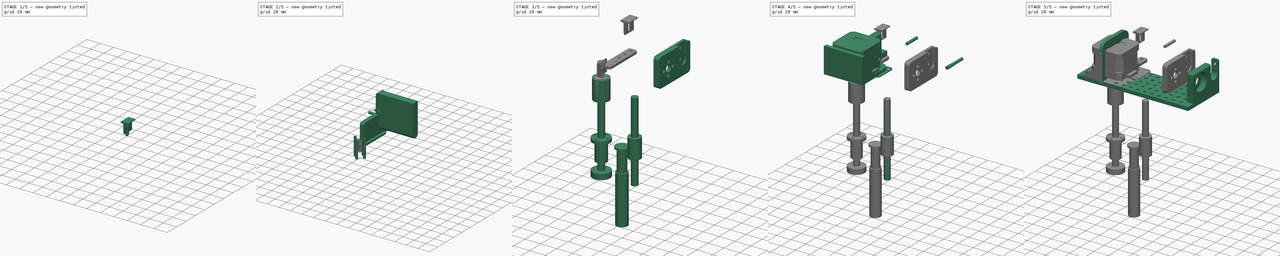
[diagram: build sequence overview — one tinted view per stage of 5, left to right]
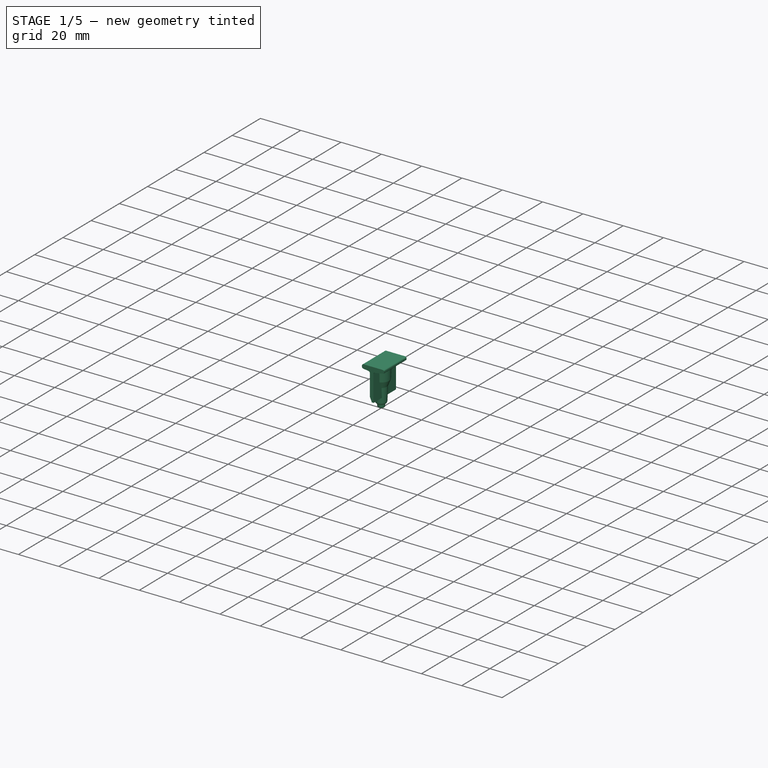
[diagram: stage 1 of 5 — iso view after this stage's code; geometry added in this stage tinted green]
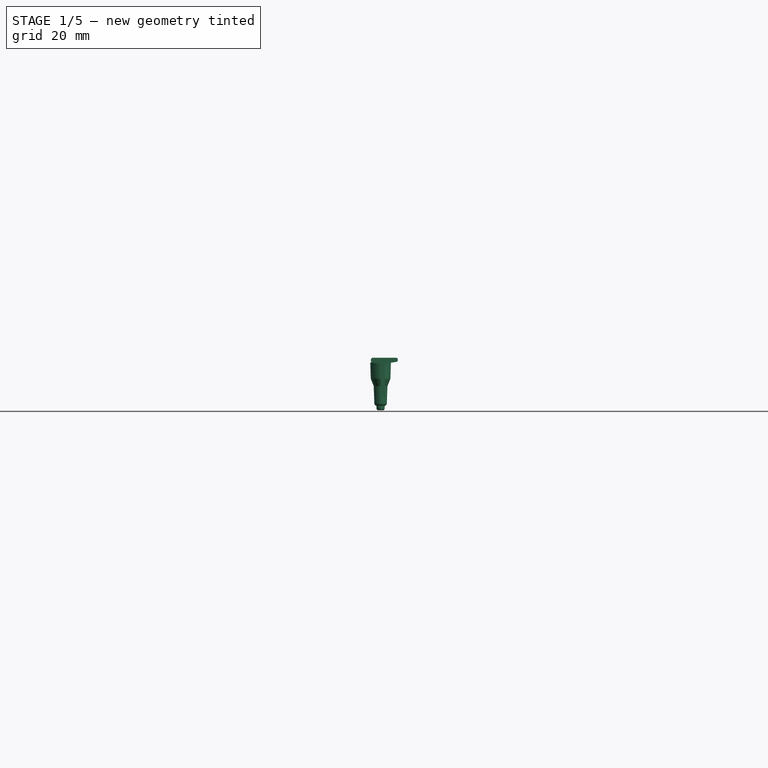
[diagram: stage 1 of 5 — front view after this stage's code; geometry added in this stage tinted green]
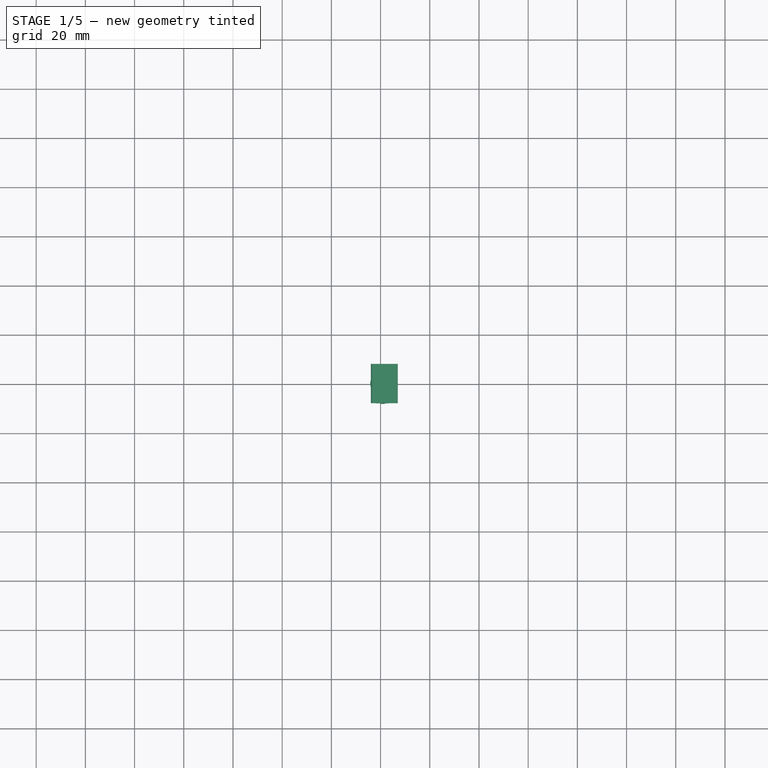
[diagram: stage 1 of 5 — top view after this stage's code; geometry added in this stage tinted green]
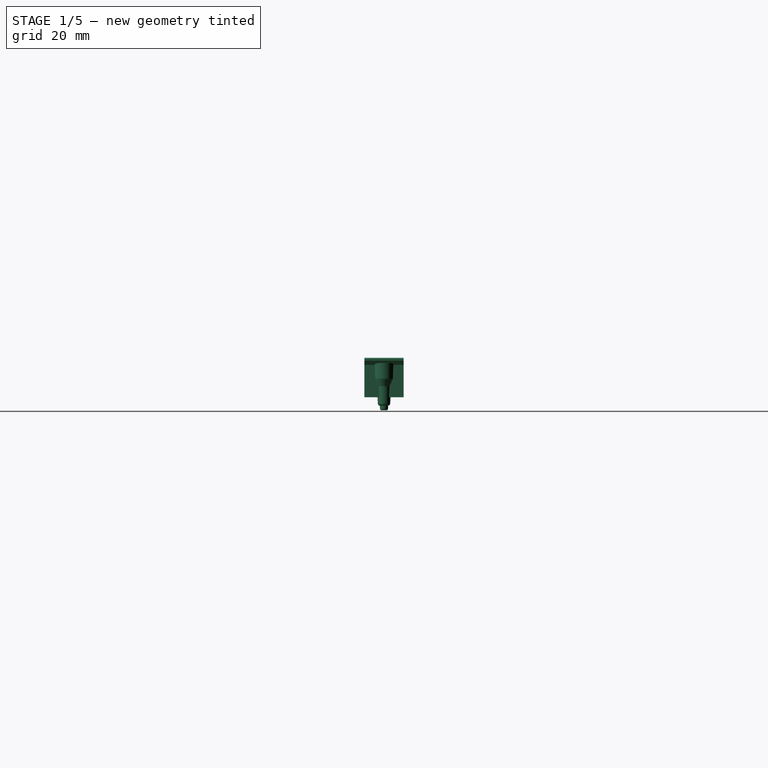
[diagram: stage 1 of 5 — right view after this stage's code; geometry added in this stage tinted green]
FCSTD DOCUMENT  (FreeCAD 0.19R)
Label: syringe_mover
License: All rights reserved
LicenseURL: http://en.wikipedia.org/wiki/All_rights_reserved
objects: Part::Cylinder×36, Part::MultiFuse×17, Part::FeaturePython×11, Part::Box×11, Part::Cut×11, Part::Cone×10, Part::Fillet×9, App::Part×6, Part::Compound×6, Spreadsheet::Sheet×4, Sketcher::SketchObject×4, PartDesign::Pad×2, Part::Extrusion×2, PartDesign::ShapeBinder×1, PartDesign::Body×1, Part::Feature×1
note: 117 computed .brp shape members not serialized (recipe doc carries the construction recipe); baked Part::Feature solids carry a one-line shape summary decoded from their .brp

FEATURE [Sketcher::SketchObject] Sketch003
  FullyConstrained = false
  Placement = pos=(0,0,0) rot=(1,0,0;1.5708rad)
  sketch-geometry (15):
    g0: LineSegment StartX=0.935284 StartY=-7.43412 StartZ=0 EndX=0 EndY=-5.19958 EndZ=0
    g1: LineSegment StartX=0 StartY=-5.19958 StartZ=0 EndX=0 EndY=5.37539 EndZ=0
    g2: LineSegment StartX=-0.731243 StartY=6.20747 StartZ=0 EndX=-3.35259 EndY=6.54707 EndZ=0
    g3: LineSegment StartX=-3.95276 StartY=7.23001 StartZ=0 EndX=-3.95276 EndY=7.66755 EndZ=0
    g4: LineSegment StartX=-3.08683 StartY=8.53349 StartZ=0 EndX=6.42081 EndY=8.53349 EndZ=0
    g5: LineSegment StartX=6.98715 StartY=7.96715 StartZ=0 EndX=6.98715 EndY=7.41622 EndZ=0
    g6: LineSegment StartX=6.52806 StartY=6.8735 StartZ=0 EndX=2.26887 EndY=6.15735 EndZ=0
    g7: LineSegment StartX=1.72668 StartY=5.51639 StartZ=0 EndX=1.72668 EndY=-7.52723 EndZ=0
    g8: LineSegment StartX=1.72668 StartY=-7.52723 StartZ=0 EndX=0.935284 EndY=-7.43412 EndZ=0
    g9: ArcOfCircle CenterX=-3.26411 CenterY=7.23001 CenterZ=0 NormalX=0 NormalY=0 NormalZ=1 AngleXU=0 Radius=0.688645 StartAngle=3.14159 EndAngle=4.58356
    g10: ArcOfCircle CenterX=-3.08683 CenterY=7.66755 CenterZ=0 NormalX=0 NormalY=0 NormalZ=1 AngleXU=0 Radius=0.865932 StartAngle=1.5708 EndAngle=3.14159
    g11: ArcOfCircle CenterX=6.42081 CenterY=7.96715 CenterZ=0 NormalX=0 NormalY=0 NormalZ=1 AngleXU=0 Radius=0.56634 StartAngle=0 EndAngle=1.5708
    g12: ArcOfCircle CenterX=6.43681 CenterY=7.41622 CenterZ=0 NormalX=0 NormalY=0 NormalZ=1 AngleXU=0 Radius=0.550336 StartAngle=4.87897 EndAngle=6.28319
    g13: ArcOfCircle CenterX=2.37664 CenterY=5.51639 CenterZ=0 NormalX=0 NormalY=0 NormalZ=1 AngleXU=0 Radius=0.649957 StartAngle=1.73738 EndAngle=3.14159
    g14: ArcOfCircle CenterX=-0.83904 CenterY=5.37539 CenterZ=0 NormalX=0 NormalY=0 NormalZ=1 AngleXU=0 Radius=0.83904 StartAngle=0 EndAngle=1.44196
  constraints (21):
    c: PointOnObject(g0,g-2)
    c: Coincident(g1,g0)
    c: Vertical(g1)
    c: Horizontal(g4)
    c: Vertical(g7)
    c: Coincident(g8,g7)
    c: Coincident(g8,g0)
    c: Vertical(g5)
    c: Vertical(g3)
    c: Tangent(g3,g9) = 1.5708
    c: Tangent(g2,g9) = 1.5708
    c: Tangent(g4,g10) = 1.5708
    c: Tangent(g3,g10) = 1.5708
    c: Tangent(g4,g11) = 1.5708
    c: Tangent(g5,g11) = 1.5708
    c: Tangent(g5,g12) = 1.5708
    c: Tangent(g6,g12) = 1.5708
    c: Tangent(g6,g13) = -1.5708
    c: Tangent(g7,g13) = -1.5708
    c: Tangent(g2,g14) = -1.5708
    c: Tangent(g1,g14) = -1.5708
FEATURE [Part::Extrusion] Extrude001  label="syringe lock extrude"
  Base = -> Sketch003
  Dir = (0,-1,2e-16)
  DirMode = 2
  FaceMakerClass = Part::FaceMakerBullseye
  LengthFwd = 16
  LengthRev = 0
  Solid = true
  Symmetric = true
  expr: LengthFwd = <<p_syringe>>.syringe_pusher_r * 2
FEATURE [Part::Cone] Cone  label="tip internal cone"
  Angle = 360
  AttacherType = Attacher::AttachEngine3D
  Height = 6.6
  Radius1 = 2
  Radius2 = 2.2
  expr: Radius1 = <<p_syringe>>.tip_r1
  expr: Radius2 = <<p_syringe>>.tip_r2
  expr: Height = <<p_syringe>>.tip_size
FEATURE [Part::Cone] Cone001  label="tip external cone"
  Angle = 360
  AttacherType = Attacher::AttachEngine3D
  Height = 6.6
  Radius1 = 4
  Radius2 = 4.2
  expr: Height = <<p_syringe>>.tip_size
  expr: Radius2 = <<p_syringe>>.tip_r2 + <<p_syringe>>.tip_wall
  expr: Radius1 = <<p_syringe>>.tip_r1 + <<p_syringe>>.tip_wall
FEATURE [Part::Cone] Cone002  label="pipetter external cone"
  Angle = 360
  AttacherType = Attacher::AttachEngine3D
  Height = 10
  Placement = pos=(0,0,-13) rot=(0,0,1;0rad)
  Radius1 = 1.6
  Radius2 = 2.1
  expr: Radius1 = <<p_syringe>>.pipette_tip_r1
  expr: Radius2 = <<p_syringe>>.pipette_tip_r2
  expr: Height = <<p_syringe>>.pipette_tip_size
  expr: .Placement.Base.z = -(<<p_syringe>>.pipette_interbody_size + <<p_syringe>>.pipette_tip_size)
FEATURE [Part::Cylinder] Cylinder116  label="pipetter hole"
  Angle = 360
  AttacherType = Attacher::AttachEngine3D
  Height = 100
  Placement = pos=(0,0,-50) rot=(0,0,1;0rad)
  Radius = 1.2
  expr: Radius = <<p_syringe>>.pipette_hole_r
  expr: .Placement.Base.z = -Height / 2
FEATURE [Part::Cone] Cone003  label="pipetter to tip cone"
  Angle = 360
  AttacherType = Attacher::AttachEngine3D
  Height = 3
  Placement = pos=(0,0,-3) rot=(0,0,1;0rad)
  Radius1 = 2.1
  Radius2 = 4
  expr: Radius2 = <<p_syringe>>.tip_r1 + <<p_syringe>>.tip_wall
  expr: Radius1 = <<p_syringe>>.pipette_tip_r2
  expr: Height = <<p_syringe>>.pipette_interbody_size
  expr: .Placement.Base.z = -<<p_syringe>>.pipette_interbody_size
FEATURE [Part::Cone] Cone004  label="pipetter to tip hole"
  Angle = 360
  AttacherType = Attacher::AttachEngine3D
  Height = 3
  Placement = pos=(0,0,-3) rot=(0,0,1;0rad)
  Radius1 = 1.2
  Radius2 = 2
  expr: .Placement.Base.z = -<<p_syringe>>.pipette_interbody_size
  expr: Height = <<p_syringe>>.pipette_interbody_size
  expr: Radius1 = <<p_syringe>>.pipette_hole_r
  expr: Radius2 = <<p_syringe>>.tip_r1
FEATURE [Part::MultiFuse] Fusion017  label="syringe tip hole fusion"
  Shapes = -> [Cone,Cylinder116,Cone004]
FEATURE [Part::Fillet] Fillet007  label="pipetter external cone fillet"
  Base = -> Cone002
  Edges = 1 edges r=1: [Edge3]
FEATURE [Part::MultiFuse] Fusion016  label="syringe tip fusion"
  Shapes = -> [Cone001,Cone003,Fillet007]
FEATURE [Part::Cut] Cut012  label="syringe tip cut"
  Base = -> Fusion016
  Tool = -> Fusion017
FEATURE [Part::Fillet] Fillet008  label="syringe tip cut fillet"
  Base = -> Cut012
  Edges = 1 edges r=1: [Edge4]
FEATURE [App::Part] Part004  label="syringe tip 10mkl part"
  Group = -> [Fillet008]
  Origin = -> Origin008
FEATURE [Part::Cone] Cone005  label="tip internal cone001"
  Angle = 360
  AttacherType = Attacher::AttachEngine3D
  Height = 6.6
  Radius1 = 2
  Radius2 = 2.2
  expr: Height = <<p_syringe>>.tip_size
  expr: Radius2 = <<p_syringe>>.tip_r2
  expr: Radius1 = <<p_syringe>>.tip_r1
FEATURE [Part::Cone] Cone006  label="tip external cone001"
  Angle = 360
  AttacherType = Attacher::AttachEngine3D
  Height = 6.6
  Radius1 = 4
  Radius2 = 4.2
  expr: Radius1 = <<p_syringe>>.tip_r1 + <<p_syringe>>.tip_wall
  expr: Radius2 = <<p_syringe>>.tip_r2 + <<p_syringe>>.tip_wall
  expr: Height = <<p_syringe>>.tip_size
FEATURE [Part::Cone] Cone007  label="pipetter external cone001"
  Angle = 360
  AttacherType = Attacher::AttachEngine3D
  Height = 8
  Placement = pos=(0,0,-11) rot=(0,0,1;0rad)
  Radius1 = 2.5
  Radius2 = 2.8
  expr: .Placement.Base.z = -(<<p_syringe>>.pipette_interbody_size + <<p_syringe>>.pipette_tip_200_size)
  expr: Height = <<p_syringe>>.pipette_tip_200_size
  expr: Radius2 = <<p_syringe>>.pipette_tip_200_r2
  expr: Radius1 = <<p_syringe>>.pipette_tip_200_r1
FEATURE [Part::Cylinder] Cylinder117  label="pipetter hole001"
  Angle = 360
  AttacherType = Attacher::AttachEngine3D
  Height = 100
  Placement = pos=(0,0,-50) rot=(0,0,1;0rad)
  Radius = 1.2
  expr: .Placement.Base.z = -Height / 2
  expr: Radius = <<p_syringe>>.pipette_hole_r
FEATURE [Part::Cone] Cone008  label="pipetter to tip cone001"
  Angle = 360
  AttacherType = Attacher::AttachEngine3D
  Height = 3
  Placement = pos=(0,0,-3) rot=(0,0,1;0rad)
  Radius1 = 2.8
  Radius2 = 4
  expr: .Placement.Base.z = -<<p_syringe>>.pipette_interbody_size
  expr: Height = <<p_syringe>>.pipette_interbody_size
  expr: Radius1 = <<p_syringe>>.pipette_tip_200_r2
  expr: Radius2 = <<p_syringe>>.tip_r1 + <<p_syringe>>.tip_wall
FEATURE [Part::Cone] Cone009  label="pipetter to tip hole001"
  Angle = 360
  AttacherType = Attacher::AttachEngine3D
  Height = 3
  Placement = pos=(0,0,-3) rot=(0,0,1;0rad)
  Radius1 = 1.2
  Radius2 = 2
  expr: Radius2 = <<p_syringe>>.tip_r1
  expr: Radius1 = <<p_syringe>>.pipette_hole_r
  expr: Height = <<p_syringe>>.pipette_interbody_size
  expr: .Placement.Base.z = -<<p_syringe>>.pipette_interbody_size
FEATURE [Part::MultiFuse] Fusion019  label="syringe tip hole fusion001"
  Shapes = -> [Cone005,Cylinder117,Cone009]
FEATURE [Part::Fillet] Fillet009  label="pipetter external cone fillet001"
  Base = -> Cone007
  Edges = 1 edges r=1: [Edge3]
FEATURE [Part::MultiFuse] Fusion018  label="syringe tip fusion001"
  Shapes = -> [Cone006,Cone008,Fillet009]
FEATURE [Part::Cut] Cut013  label="syringe tip cut001"
  Base = -> Fusion018
  Tool = -> Fusion019
FEATURE [Part::Fillet] Fillet010  label="syringe tip cut fillet001"
  Base = -> Cut013
  Edges = 1 edges r=1: [Edge4]
FEATURE [App::Part] Part005  label="syringe tip 200mkl part"
  Group = -> [Fillet010]
  Origin = -> Origin009
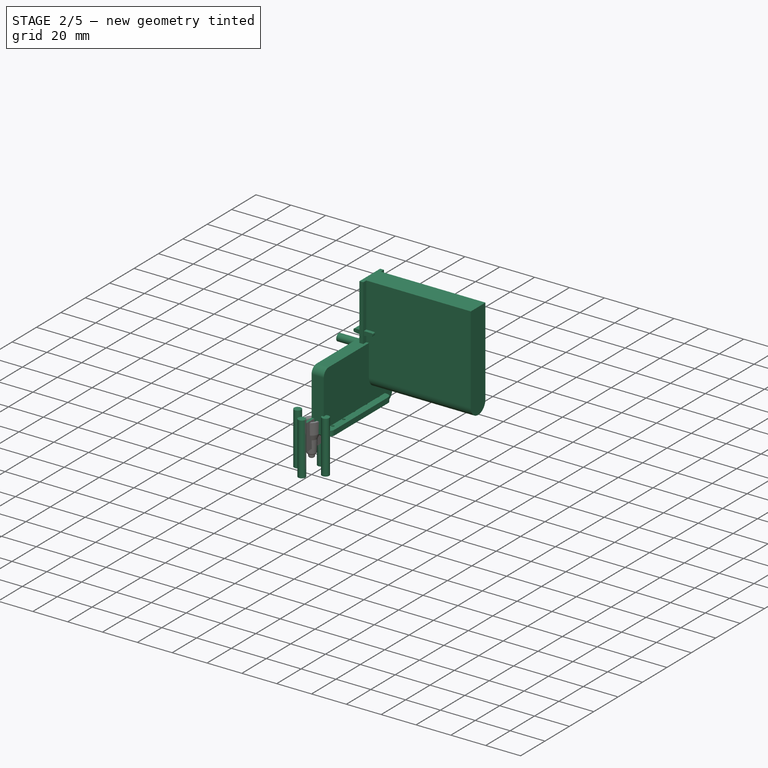
[diagram: stage 2 of 5 — iso view after this stage's code; geometry added in this stage tinted green]
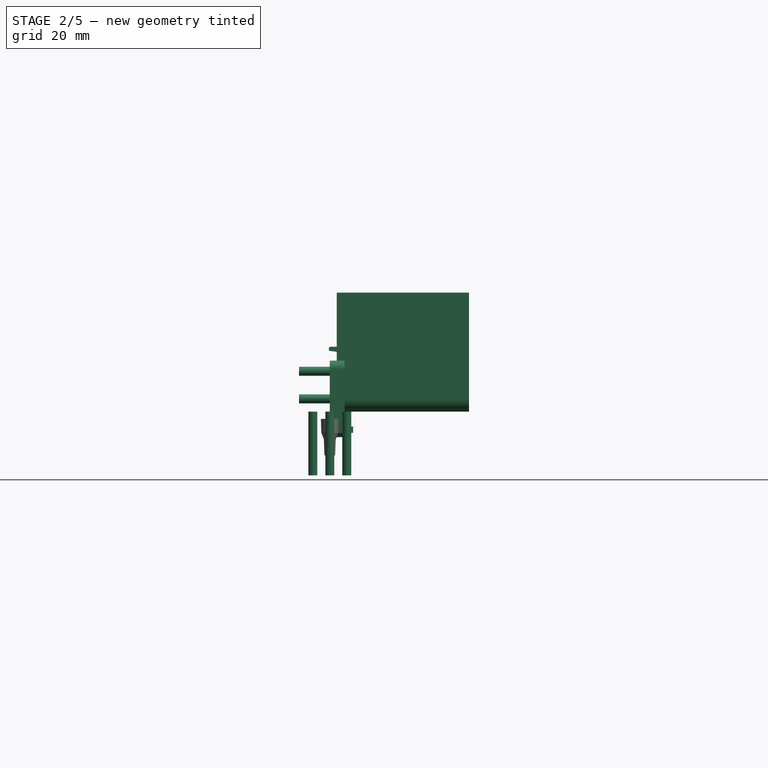
[diagram: stage 2 of 5 — front view after this stage's code; geometry added in this stage tinted green]
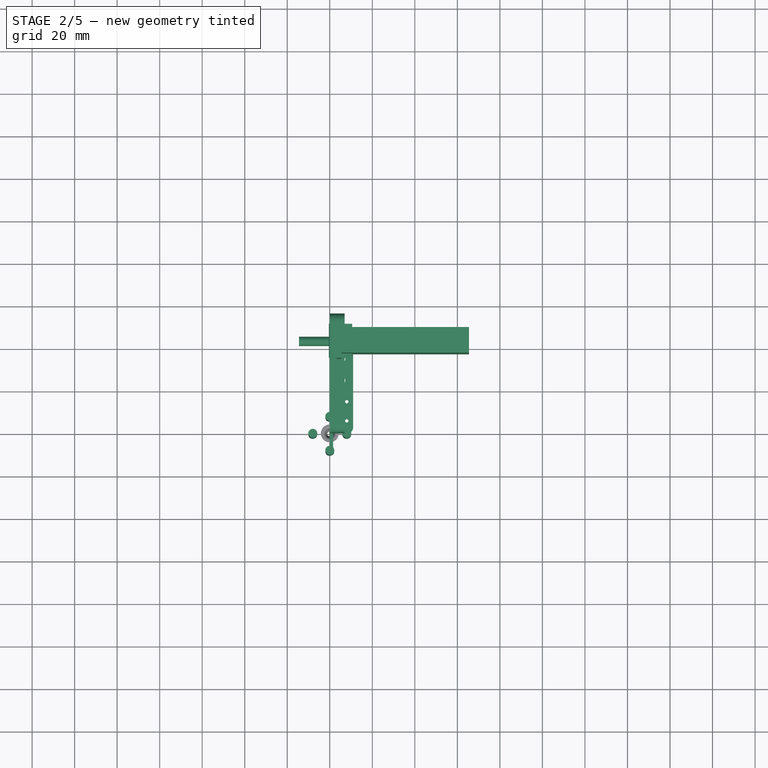
[diagram: stage 2 of 5 — top view after this stage's code; geometry added in this stage tinted green]
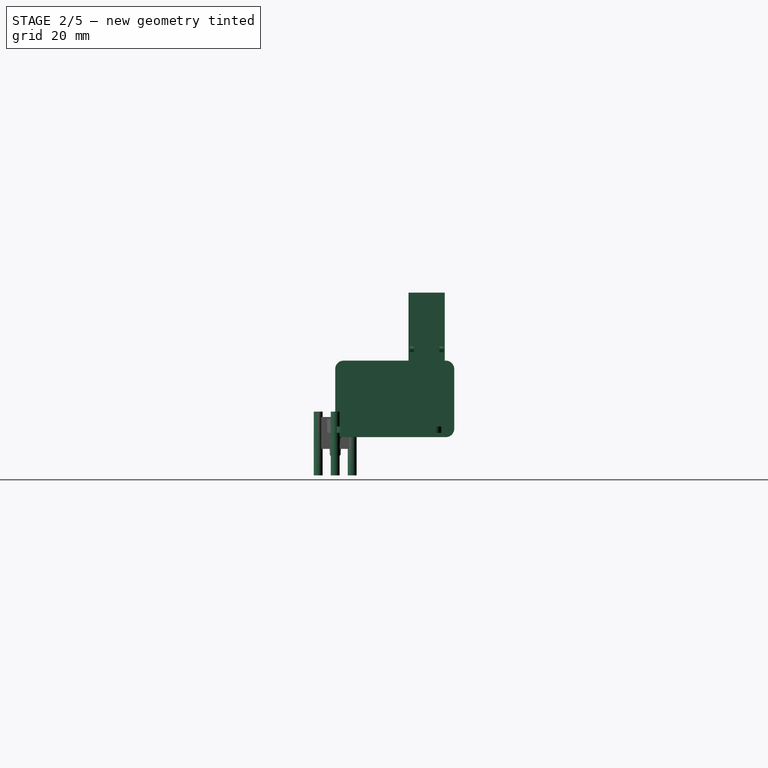
[diagram: stage 2 of 5 — right view after this stage's code; geometry added in this stage tinted green]
FEATURE [App::Part] Part003  label="stepper construction mockup"
  Group = -> [Pocket003Body001,Cylinder002,Cylinder003,Cylinder004,Cylinder005,Fusion011,Cylinder006,Array001009,Cut008,Compound002,Cylinder009,Cylinder007,Cylinder013]
  Origin = -> Origin001
  Placement = pos=(-1.5,0,21.5) rot=(0.57735,0.57735,-0.57735;4.18879rad)
FEATURE [Part::Box] Box010  label="middle block cube"
  AttacherType = Attacher::AttachEngine3D
  Height = 36
  Length = 7
  Placement = pos=(0,0,-2) rot=(0,0,1;0rad)
  Width = 56
  expr: Height = <<p_block>>.middle_block_z
  expr: Width = <<p_block>>.middle_block_y
  expr: Length = <<p_block>>.middle_block_x
FEATURE [Part::Cylinder] Cylinder111  label="syringe pusher body extract"
  Angle = 360
  AttacherType = Attacher::AttachEngine3D
  Height = 60
  Radius = 6
  expr: Radius = <<p_syringe>>.syringe_pusher_internal_r + <<p_syringe>>.syringe_pusher_body_gap
  expr: Height = <<p_syringe>>.syringe_pusher_body_x
FEATURE [Part::Cylinder] Cylinder112  label="syringe pusher disk extract"
  Angle = 360
  AttacherType = Attacher::AttachEngine3D
  Height = 2.2
  Placement = pos=(0,0,60) rot=(0,0,1;0rad)
  Radius = 8.5
  expr: Radius = <<p_syringe>>.syringe_pusher_r + <<p_syringe>>.syringe_pusher_body_gap
  expr: Height = <<p_syringe>>.syringe_pusher_x
  expr: .Placement.Base.z = <<p_syringe>>.syringe_pusher_body_x
FEATURE [Part::Box] Box011  label="syringe pusher disk path extract"
  AttacherType = Attacher::AttachEngine3D
  Height = 2.2
  Length = 50
  Placement = pos=(0,-8.5,60) rot=(0,0,1;0rad)
  Width = 17
  expr: .Placement.Base.z = <<p_syringe>>.syringe_pusher_body_x
  expr: .Placement.Base.y = -Width / 2
  expr: Width = (<<p_syringe>>.syringe_pusher_r + <<p_syringe>>.syringe_pusher_body_gap) * 2
  expr: Height = <<p_syringe>>.syringe_pusher_x
FEATURE [Part::Box] Box012  label="syringe pusher body path extract"
  AttacherType = Attacher::AttachEngine3D
  Height = 60
  Length = 50
  Placement = pos=(0,-6,0) rot=(0,0,1;0rad)
  Width = 12
  expr: Height = <<p_syringe>>.syringe_pusher_body_x
  expr: Width = (<<p_syringe>>.syringe_pusher_internal_r + <<p_syringe>>.syringe_pusher_body_gap) * 2
  expr: .Placement.Base.y = -Width / 2
FEATURE [Part::Cylinder] Cylinder113  label="syringe pusher insert hole extract"
  Angle = 360
  AttacherType = Attacher::AttachEngine3D
  Height = 20
  Placement = pos=(0,0,60) rot=(0,0,1;0rad)
  Radius = 2.1
  expr: .Placement.Base.z = <<p_syringe>>.syringe_pusher_body_x
  expr: Radius = <<p_syringe>>.insert_hole_r
FEATURE [Part::Fillet] Fillet005  label="middle block cube fillet"
  Base = -> Box010
  Edges = 4 edges r=4: [Edge9,Edge10,Edge11,Edge12]
FEATURE [Part::Cylinder] Cylinder114  label="backlash insert hole"
  Angle = 360
  AttacherType = Attacher::AttachEngine3D
  Height = 30
  Placement = pos=(0,0,-20) rot=(0,0,1;0rad)
  Radius = 2.1
  expr: Radius = <<p_block>>.insert_r
FEATURE [Part::FeaturePython] Array001010  label="backlash insert hole array"  # Draft array (typed FeaturePython)
  Angle = 360
  ArrayType = 0
  Axis = (0,0,1)
  Base = -> Cylinder114
  Center = (0,0,0)
  Count = 4
  ExpandArray = false
  Fuse = false
  IntervalAxis = (0,0,0)
  IntervalX = (11.3,0,0)
  IntervalY = (0,11.3,0)
  IntervalZ = (0,0,100)
  NumberCircles = 3
  NumberPolar = 5
  NumberX = 2
  NumberY = 2
  NumberZ = 1
  Placement = pos=(-5.65,-5.65,0) rot=(0,0,1;0rad)
  PlacementList = 4 placements: [(0,0,-20),(0,11.3,-20),(11.3,0,-20),(11.3,11.3,-20)]
  RadialDistance = 50
  ScaleList = (4) [(1,1,1),(1,1,1),(1,1,1),(1,1,1)]
  Symmetry = 1
  TangentialDistance = 25
  expr: .Placement.Base.y = -.IntervalY.y / 2
  expr: .Placement.Base.x = -.IntervalX.x / 2
FEATURE [Part::Compound] Compound005  label="backlash insert holes compound"
  Links = -> [Array001010]
  Placement = pos=(0,0,0) rot=(0,0,1;0.785398rad)
FEATURE [Part::Cylinder] Cylinder034  label="end body narrow hole"
  Angle = 360
  AttacherType = Attacher::AttachEngine3D
  Height = 30
  Radius = 0.8
  expr: Radius = <<p_endstop>>.endstop_hole_r
FEATURE [Part::FeaturePython] Array001017  label="end stop narrow hole array"  # Draft array (typed FeaturePython)
  Angle = 360
  ArrayType = 0
  Axis = (0,0,1)
  Base = -> Cylinder034
  Center = (0,0,0)
  Fuse = false
  IntervalAxis = (0,0,0)
  IntervalX = (1,0,0)
  IntervalY = (0,9,0)
  IntervalZ = (0,0,1)
  NumberPolar = 1
  NumberX = 1
  NumberY = 2
  NumberZ = 1
  Placement = pos=(8,6,0) rot=(0,0,1;0rad)
  expr: .Placement.Base.y = <<p_endstop>>.ednstop_hole_offset_y
  expr: .Placement.Base.x = Spreadsheet004.ednstop_hole_offset_x
  expr: .IntervalY.y = <<p_endstop>>.endstop_hole_dist
FEATURE [Part::Box] Box013  label="end stop base cube"
  AttacherType = Attacher::AttachEngine3D
  Height = 3
  Length = 11
  Width = 50
  expr: Height = <<p_endstop>>.endstop_base_z
  expr: Width = <<p_endstop>>.endstop_base_y
  expr: Length = <<p_endstop>>.endstop_base_x
FEATURE [Spreadsheet::Sheet] Spreadsheet004  label="p_endstop"
  cells = A1=endstop_hole_r; B1(endstop_hole_r)==0.8mm; A2=endstop_hole_dist; B2(endstop_hole_dist)==9mm; A3=ednstop_hole_offset_x; B3(ednstop_hole_offset_x)==8mm; A4=ednstop_hole_offset_y; B4(ednstop_hole_offset_y)==6mm; A5=endstop_base_x; B5(endstop_base_x)==11mm; A6=endstop_base_y; B6(endstop_base_y)==50mm; A7=endstop_base_z; B7(endstop_base_z)==3mm; A8=bolt_hole_r; B8(bolt_hole_r)==1.8mm
FEATURE [Part::Cylinder] Cylinder115  label="bolt hole001"
  Angle = 360
  AttacherType = Attacher::AttachEngine3D
  Height = 10
  Radius = 1.8
  expr: Radius = <<p_endstop>>.bolt_hole_r
FEATURE [Part::FeaturePython] Array001018  label="bolt hole array"  # Draft array (typed FeaturePython)
  Angle = 360
  ArrayType = 0
  Axis = (0,0,1)
  Base = -> Cylinder115
  Center = (0,0,0)
  Count = 3
  ExpandArray = false
  Fuse = false
  IntervalAxis = (0,0,0)
  IntervalX = (10,0,0)
  IntervalY = (0,10,0)
  IntervalZ = (0,0,100)
  NumberCircles = 3
  NumberPolar = 5
  NumberX = 1
  NumberY = 3
  NumberZ = 1
  Placement = pos=(5.5,25,0) rot=(0,0,1;0rad)
  PlacementList = 3 placements: arithmetic series from (0,0,0) step (0,10,0) to (0,20,0)
  RadialDistance = 50
  ScaleList = (3) [(1,1,1),(1,1,1),(1,1,1)]
  Symmetry = 1
  TangentialDistance = 25
  expr: .Placement.Base.x = <<end stop base cube>>.Length / 2
  expr: .Placement.Base.y = .IntervalY.y * 2.5
FEATURE [Part::MultiFuse] Fusion015  label="endstop hole fusion"
  Shapes = -> [Array001017,Array001018]
FEATURE [Part::Fillet] Fillet006  label="end stop base cube fillet"
  Base = -> Box013
  Edges = 4 edges r=3: [Edge1,Edge3,Edge5,Edge7]
FEATURE [Part::Cut] Cut010  label="endstop base cut"
  Base = -> Fillet006
  Tool = -> Fusion015
FEATURE [Part::FeaturePython] Array001019  label="syringe pusher insert hole extract array"  # Draft array (typed FeaturePython)
  Angle = 360
  ArrayType = 0
  Axis = (0,0,1)
  Base = -> Cylinder113
  Center = (0,0,0)
  Count = 2
  ExpandArray = false
  Fuse = false
  IntervalAxis = (0,0,0)
  IntervalX = (13,0,0)
  IntervalY = (0,100,0)
  IntervalZ = (0,0,100)
  NumberCircles = 3
  NumberPolar = 5
  NumberX = 2
  NumberY = 1
  NumberZ = 1
  PlacementList = 2 placements: [(0,0,60),(13,0,60)]
  RadialDistance = 50
  ScaleList = (2) [(1,1,1),(1,1,1)]
  Symmetry = 1
  TangentialDistance = 25
FEATURE [Part::MultiFuse] Fusion013  label="syringe pusher extract"
  Placement = pos=(65.5,43,16) rot=(0,-1,0;1.5708rad)
  Shapes = -> [Cylinder112,Cylinder111,Box011,Box012,Array001019]
FEATURE [Part::Box] Box014  label="syringe lock cube"
  AttacherType = Attacher::AttachEngine3D
  Height = 15
  Length = 1.6
  Placement = pos=(0,-8,-7.5) rot=(0,0,1;0rad)
  Width = 16
  expr: .Placement.Base.z = -Height / 2
  expr: .Placement.Base.y = -Width / 2
  expr: Width = <<p_syringe>>.syringe_pusher_r * 2
  expr: Length = <<p_syringe>>.syringe_pusher_x - 0.6mm
FEATURE [Sketcher::SketchObject] Sketch002
  FullyConstrained = false
  Placement = pos=(0,0,0) rot=(0.57735,0.57735,0.57735;2.0944rad)
  expr: Constraints[6] = <<p_syringe>>.bolt_hole_r * 2
  sketch-geometry (4):
    g0: LineSegment StartX=-1.8 StartY=-3.96813 StartZ=0 EndX=-1.8 EndY=3.96813 EndZ=0
    g1: LineSegment StartX=1.8 StartY=3.96813 StartZ=0 EndX=1.8 EndY=-3.96813 EndZ=0
    g2: ArcOfCircle CenterX=1.1e-15 CenterY=3.96813 CenterZ=0 NormalX=0 NormalY=0 NormalZ=1 AngleXU=0 Radius=1.8 StartAngle=0 EndAngle=3.14159
    g3: ArcOfCircle CenterX=-1e-16 CenterY=-3.96813 CenterZ=0 NormalX=0 NormalY=0 NormalZ=1 AngleXU=0 Radius=1.8 StartAngle=3.14159 EndAngle=6.28319
  constraints (8):
    c: Vertical(g0)
    c: Tangent(g2,g1) = 1.5708
    c: Tangent(g2,g0) = 1.5708
    c: Tangent(g3,g0) = 1.5708
    c: Tangent(g3,g1) = 1.5708
    c: Symmetric(g0,g1,g-2)
    c: DistanceX(g0,g1) = 3.6
    c: Symmetric(g3,g2,g-1)
FEATURE [Part::Extrusion] Extrude  label="syringe lock bolt hole extrude"
  Base = -> Sketch002
  Dir = (1,0,0)
  DirMode = 2
  FaceMakerClass = Part::FaceMakerBullseye
  LengthFwd = 10
  LengthRev = 0
  Solid = true
  Symmetric = false
FEATURE [Part::Cut] Cut011  label="syringe lock cut"
  Base = -> Extrude001
  Placement = pos=(3.5,43,32) rot=(0,0,1;0rad)
  Tool = -> Extrude
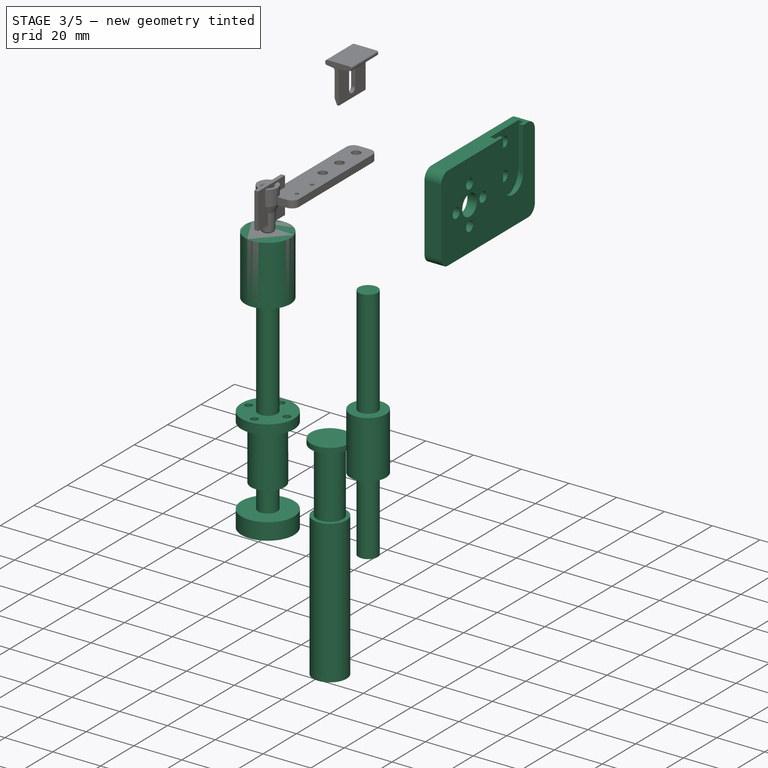
[diagram: stage 3 of 5 — iso view after this stage's code; geometry added in this stage tinted green]
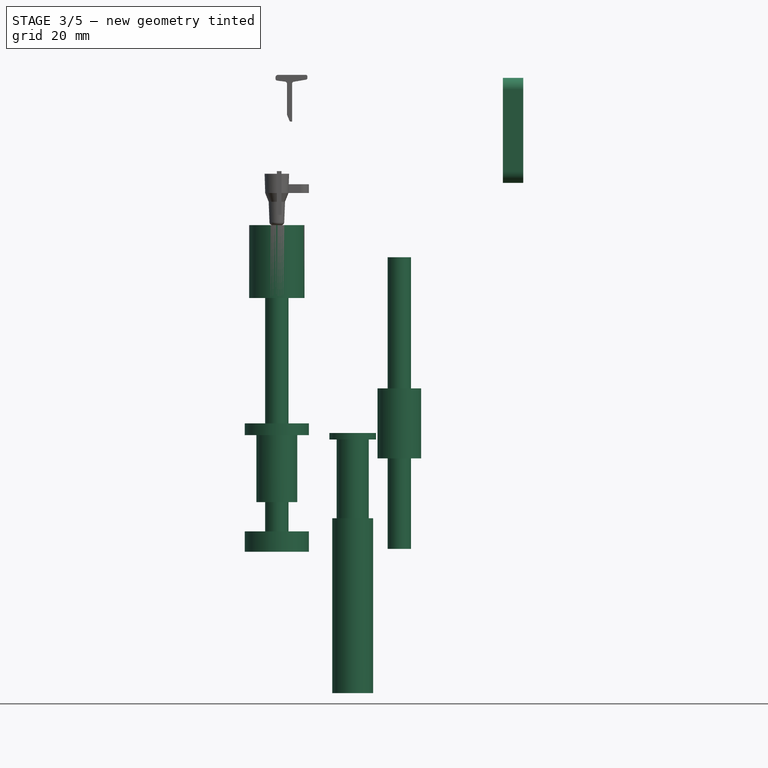
[diagram: stage 3 of 5 — front view after this stage's code; geometry added in this stage tinted green]
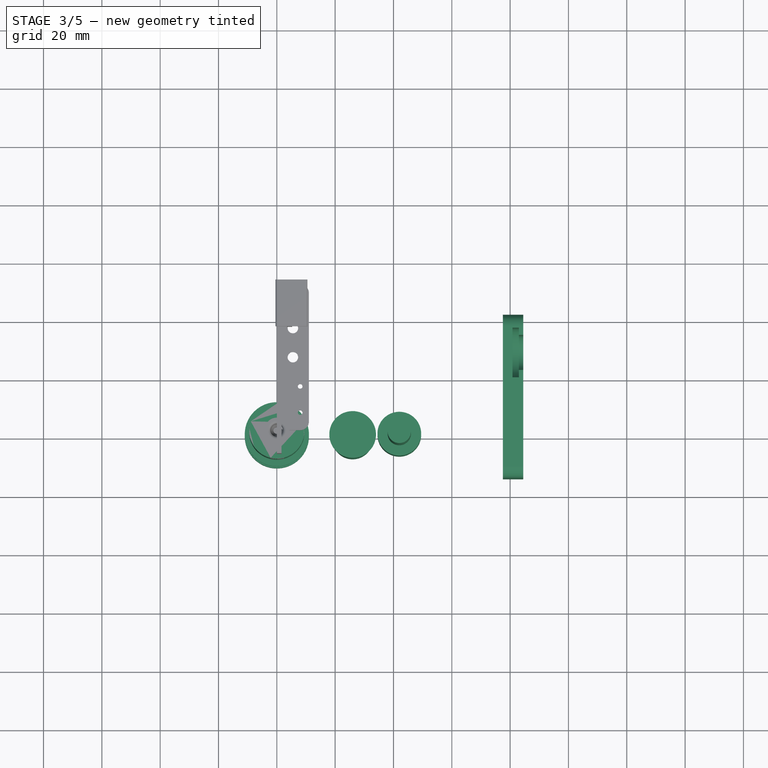
[diagram: stage 3 of 5 — top view after this stage's code; geometry added in this stage tinted green]
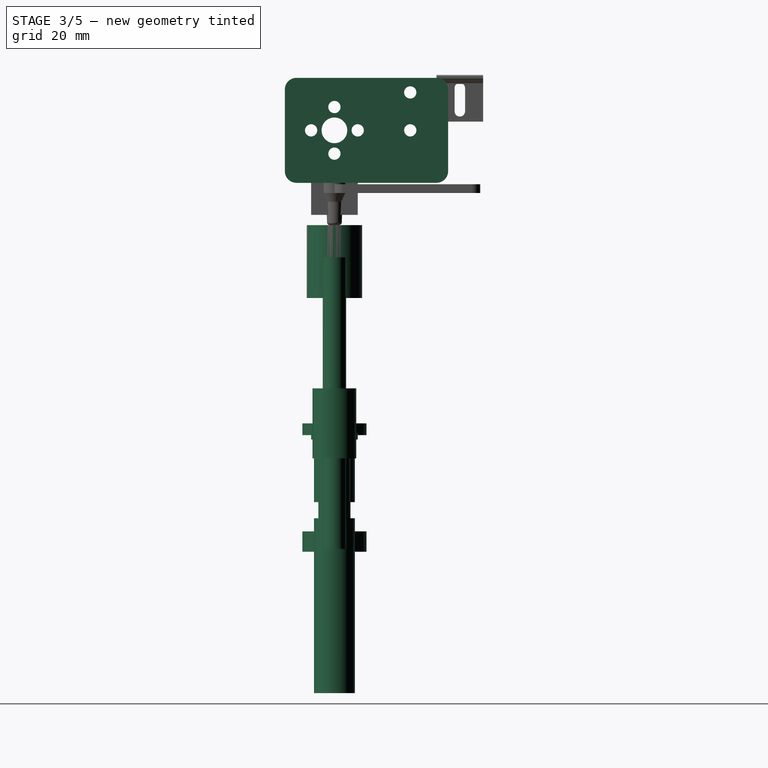
[diagram: stage 3 of 5 — right view after this stage's code; geometry added in this stage tinted green]
FEATURE [App::Part] Part002  label="bearing cover part"
  Group = -> [Box009,Cylinder107,Array001008,Cut007,Cylinder021,Fusion010,Fillet004]
  Origin = -> Origin002
  Placement = pos=(125,-15,6.5) rot=(0,1,0;4.71239rad)
FEATURE [Part::Cylinder] Cylinder012  label="lead hole cylinder"
  Angle = 360
  AttacherType = Attacher::AttachEngine3D
  Height = 40
  Placement = pos=(0,0,-20) rot=(0,0,1;0rad)
  Radius = 4.4
FEATURE [Part::Cylinder] Cylinder018  label="backlash nut disk hole"
  Angle = 360
  AttacherType = Attacher::AttachEngine3D
  Height = 20
  Placement = pos=(0,0,-23) rot=(0,0,1;0rad)
  Radius = 14.5
FEATURE [Part::Feature] Pocket003Body001  label="StepperBody"
  Placement = pos=(0,0,4) rot=(0,0,1;0rad)
  shape: bbox 46.6 x 42.3 x 53.35 mm, 70 faces (baked)
FEATURE [Part::Cylinder] Cylinder002
  Angle = 360
  AttacherType = Attacher::AttachEngine3D
  Height = 25
  Placement = pos=(0,0,-36) rot=(0,0,1;0rad)
  Radius = 9.5
FEATURE [Part::Cylinder] Cylinder003  label="lead cylinder"
  Angle = 360
  AttacherType = Attacher::AttachEngine3D
  Height = 100
  Placement = pos=(0,0,-120) rot=(0,0,1;0rad)
  Radius = 4
FEATURE [Part::Cylinder] Cylinder004  label="backlash nut cylinder"
  Angle = 360
  AttacherType = Attacher::AttachEngine3D
  Height = 23
  Placement = pos=(0,0,-23) rot=(0,0,1;0rad)
  Radius = 7
FEATURE [Part::Cylinder] Cylinder005  label="backlash nut disk"
  Angle = 360
  AttacherType = Attacher::AttachEngine3D
  Height = 4
  Radius = 11
FEATURE [Part::Cylinder] Cylinder006  label="Cylinder004"
  Angle = 360
  AttacherType = Attacher::AttachEngine3D
  Height = 20
  Placement = pos=(0,-8,-5) rot=(0,0,1;0rad)
  Radius = 1.5
FEATURE [Part::FeaturePython] Array001009  # Draft array (typed FeaturePython)
  Angle = 360
  ArrayType = 1
  Axis = (0,0,1)
  Base = -> Cylinder006
  Center = (0,0,0)
  Fuse = false
  IntervalAxis = (0,0,0)
  IntervalX = (1,0,0)
  IntervalY = (0,1,0)
  IntervalZ = (0,0,1)
  NumberPolar = 4
  NumberX = 2
  NumberY = 2
  NumberZ = 1
FEATURE [Part::Cut] Cut008
  Base = -> Cylinder005
  Tool = -> Array001009
FEATURE [Part::MultiFuse] Fusion011  label="backlash nut union"
  Placement = pos=(0,0,-83) rot=(0,0,1;0rad)
  Shapes = -> [Cut008,Cylinder004]
FEATURE [Part::Cylinder] Cylinder007  label="rod cylinder"
  Angle = 360
  AttacherType = Attacher::AttachEngine3D
  Height = 100
  Placement = pos=(42,0,-122) rot=(0,0,1;0rad)
  Radius = 4
FEATURE [Part::Cylinder] Cylinder009  label="bearing"
  Angle = 360
  AttacherType = Attacher::AttachEngine3D
  Height = 7
  Placement = pos=(0,0,-123) rot=(0,0,1;0rad)
  Radius = 11
FEATURE [Part::Cylinder] Cylinder013  label="rod bearing cylinder"
  Angle = 360
  AttacherType = Attacher::AttachEngine3D
  Height = 24
  Placement = pos=(42,0,-91) rot=(0,0,1;0rad)
  Radius = 7.5
FEATURE [Part::MultiFuse] Fusion005  label="rod fusion"
  Shapes = -> [Cylinder013,Cylinder007]
FEATURE [Part::Cylinder] Cylinder108  label="syringe body"
  Angle = 360
  AttacherType = Attacher::AttachEngine3D
  Height = 60
  Radius = 7
  expr: Height = <<p_syringe>>.syringe_body_x
  expr: Radius = <<p_syringe>>.syringe_r
FEATURE [Part::Cylinder] Cylinder109  label="syringe pusher disk"
  Angle = 360
  AttacherType = Attacher::AttachEngine3D
  Height = 2.2
  Placement = pos=(0,0,60) rot=(0,0,1;0rad)
  Radius = 8
  expr: .Placement.Base.z = <<p_syringe>>.syringe_pusher_body_x
  expr: Height = <<p_syringe>>.syringe_pusher_x
  expr: Radius = <<p_syringe>>.syringe_pusher_r
FEATURE [Part::Cylinder] Cylinder110  label="syringe pusher body"
  Angle = 360
  AttacherType = Attacher::AttachEngine3D
  Height = 60
  Radius = 5.5
  expr: Height = <<p_syringe>>.syringe_pusher_body_x
  expr: Radius = <<p_syringe>>.syringe_pusher_internal_r
FEATURE [Part::MultiFuse] Fusion012  label="syringe pusher"
  Placement = pos=(0,0,27) rot=(0,0,1;0rad)
  Shapes = -> [Cylinder109,Cylinder110]
FEATURE [Part::Compound] Compound003  label="syringe mockup compound"
  Links = -> [Cylinder108,Fusion012]
  Placement = pos=(26,0,-171.5) rot=(0,0,1;0rad)
FEATURE [Part::MultiFuse] Fusion004  label="nut disk hole union"
  Placement = pos=(6,17,16) rot=(0,1,0;1.5708rad)
  Shapes = -> [Cylinder012,Cylinder018,Compound005]
FEATURE [Part::MultiFuse] Fusion014  label="middle block extract fusion"
  Shapes = -> [Fusion013,Fusion004]
FEATURE [Part::Cut] Cut009  label="middle block cut"
  Base = -> Fillet005
  Tool = -> Fusion014
FEATURE [Part::Compound] Compound004  label="middle block compound"
  Links = -> [Cut009]
  Placement = pos=(77.5,-17,5.5) rot=(0,0,1;0rad)
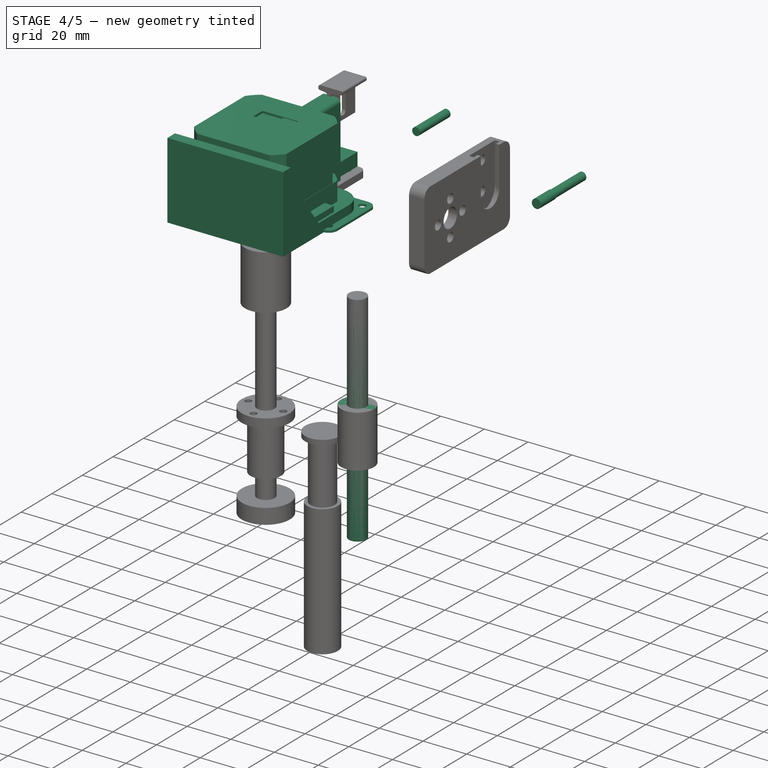
[diagram: stage 4 of 5 — iso view after this stage's code; geometry added in this stage tinted green]
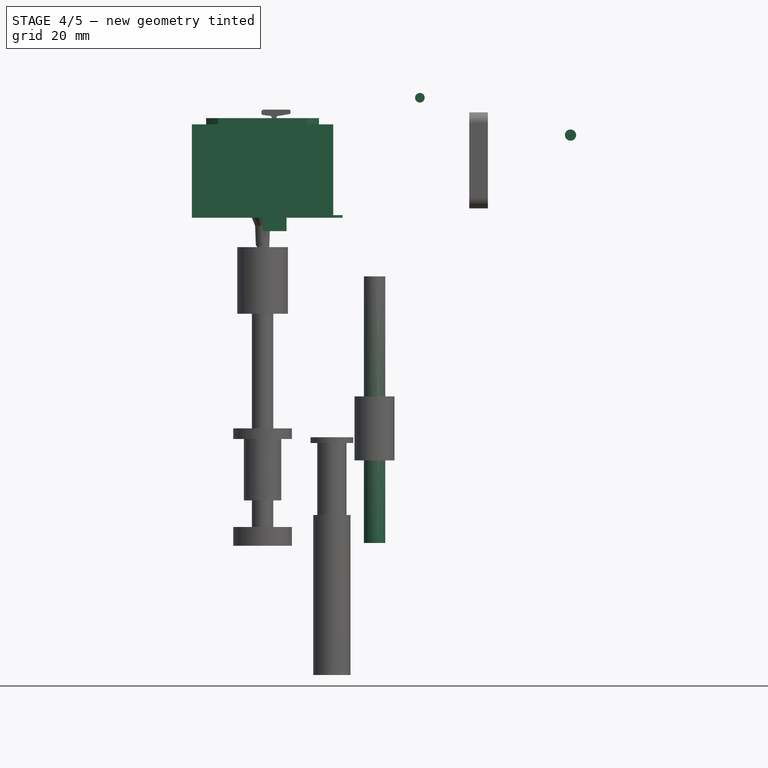
[diagram: stage 4 of 5 — front view after this stage's code; geometry added in this stage tinted green]
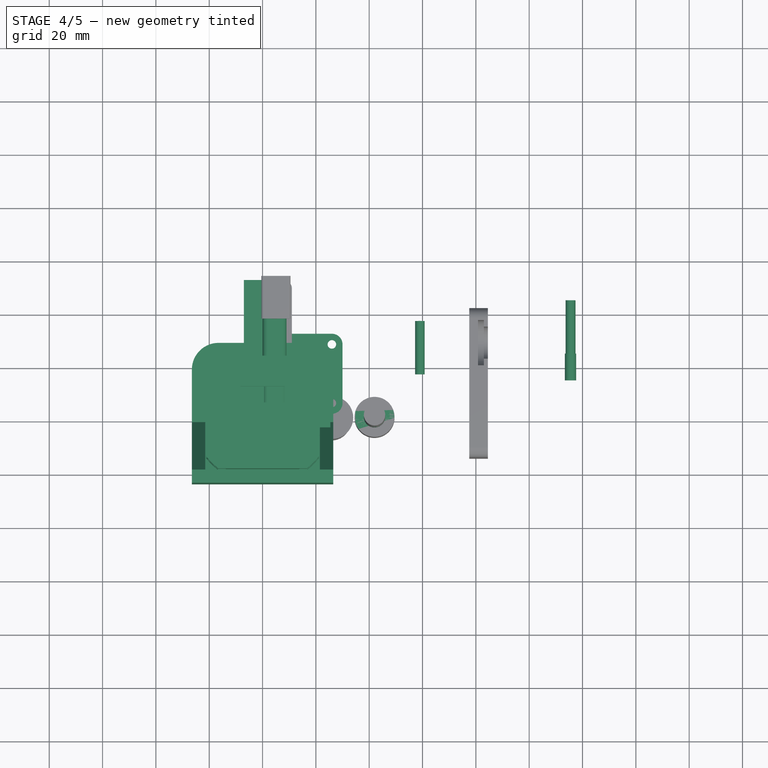
[diagram: stage 4 of 5 — top view after this stage's code; geometry added in this stage tinted green]
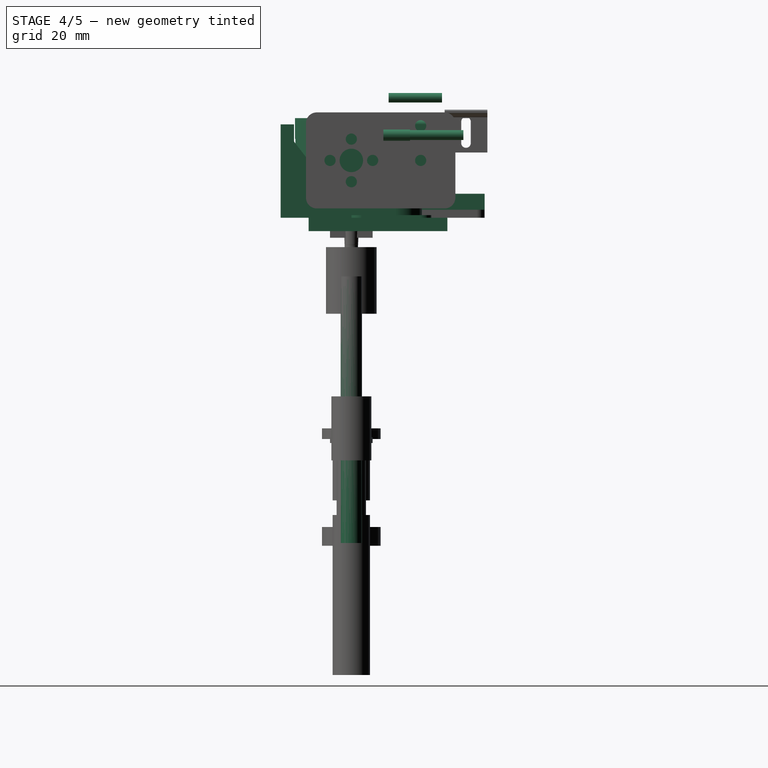
[diagram: stage 4 of 5 — right view after this stage's code; geometry added in this stage tinted green]
FEATURE [Part::Box] Box006  label="stepper mount bottom"
  AttacherType = Attacher::AttachEngine3D
  Height = 30
  Length = 53
  Placement = pos=(-26.5,-26.5,5) rot=(0,0,1;0rad)
  Width = 5
  expr: .Placement.Base.z = <<p_stepper>>.stepper_mount_wall
  expr: Height = <<p_stepper>>.bottom_plate_size
  expr: .Placement.Base.y = -<<p_stepper>>.stepper_size / 2 - <<p_stepper>>.stepper_mount_wall
  expr: .Placement.Base.x = -Length / 2
  expr: Length = <<p_stepper>>.stepper_size + 2 * <<p_stepper>>.stepper_mount_wall
  expr: Width = <<p_stepper>>.stepper_mount_wall
FEATURE [Part::Box] Box005  label="stepper mount cube"
  AttacherType = Attacher::AttachEngine3D
  Height = 5
  Length = 53
  Placement = pos=(-26.5,-26.5,0) rot=(0,0,1;0rad)
  Width = 53
  expr: .Placement.Base.x = -Length / 2
  expr: .Placement.Base.y = -Width / 2
  expr: Width = <<p_stepper>>.stepper_size + 2 * <<p_stepper>>.stepper_mount_wall
  expr: Length = <<p_stepper>>.stepper_size + 2 * <<p_stepper>>.stepper_mount_wall
  expr: Height = <<p_stepper>>.stepper_mount_wall
FEATURE [PartDesign::ShapeBinder] ShapeBinder
  Placement = pos=(-26.5,-26.5,0) rot=(0,0,1;0rad)
  Support = -> [Box005]
  TraceSupport = false
FEATURE [Part::Fillet] Fillet001  label="stepper mount cube fillet"
  Base = -> Box005
  Edges = 2 edges r=10: [Edge3,Edge7]
FEATURE [Sketcher::SketchObject] Sketch001
  ExternalGeometry = -> [ShapeBinder]
  FullyConstrained = false
  MapMode = 5
  Placement = pos=(0,0,0) rot=(0.57735,0.57735,0.57735;2.0944rad)
  expr: Constraints[6] = <<p_stepper>>.bottom_plate_size
  sketch-geometry (3):
    g0: LineSegment StartX=-26.5 StartY=5 StartZ=0 EndX=-3.22422 EndY=5 EndZ=0
    g1: LineSegment StartX=-3.22422 StartY=5 StartZ=0 EndX=-26.5 EndY=35 EndZ=0
    g2: LineSegment StartX=-26.5 StartY=35 StartZ=0 EndX=-26.5 EndY=5 EndZ=0
  constraints (7):
    c: Coincident(g0,g-3)
    c: Horizontal(g0)
    c: Coincident(g1,g0)
    c: Coincident(g2,g1)
    c: Coincident(g2,g0)
    c: Vertical(g2)
    c: DistanceY(g2,g2) = 30
FEATURE [PartDesign::Pad] Pad001
  Direction = (1,1,1)
  Length = 5
  Length2 = 100
  Placement = pos=(0,0,0) rot=(0.57735,0.57735,0.57735;2.0944rad)
  Profile = -> Sketch001
  Type = 0
  expr: Length = <<p_stepper>>.stepper_mount_wall
FEATURE [Part::FeaturePython] Array002  label="side array"  # Draft array (typed FeaturePython)
  Angle = 360
  ArrayType = 0
  Axis = (0,0,1)
  Base = -> Pad001
  Center = (0,0,0)
  Count = 2
  ExpandArray = false
  Fuse = false
  IntervalAxis = (0,0,0)
  IntervalX = (48,0,0)
  IntervalY = (0,100,0)
  IntervalZ = (0,0,100)
  NumberCircles = 3
  NumberPolar = 5
  NumberX = 2
  NumberY = 1
  NumberZ = 1
  Placement = pos=(-26.5,0,0) rot=(0,0,1;0rad)
  PlacementList = 2 placements: [(0,0,0),(48,0,0)]
  RadialDistance = 50
  ScaleList = (2) [(1,1,1),(1,1,1)]
  Symmetry = 1
  TangentialDistance = 25
  expr: .Placement.Base.x = -(.IntervalX.x + <<p_stepper>>.stepper_mount_wall) / 2
  expr: .IntervalX.x = <<stepper mount cube>>.Length - <<p_stepper>>.stepper_mount_wall
FEATURE [App::Part] Part001  label="stepper mount part"
  Group = -> [YZ_Plane008,Sketch001,Pad001,Fusion007,Box005,Cylinder,Array,Box006,Fillet001,Cylinder098,Array001,Fusion006,Cylinder097,Array002,ShapeBinder,Cut004]
  Origin = -> Origin005
FEATURE [Spreadsheet::Sheet] Spreadsheet002  label="p_stepper"
  cells = A1=stepper_mount_wall; B1(stepper_mount_wall)==5mm; A2=bolt_hole_dist; B2(bolt_hole_dist)==31mm; A3=central_hole_r; B3(central_hole_r)==11.5mm; A4=bolt_hole_r; B4(bolt_hole_r)==1.8mm; A5=stepper_size; B5(stepper_size)==43mm; A6=bottom_plate_size; B6(bottom_plate_size)==30mm; A7=insert_hole_r; B7(insert_hole_r)==2.2mm; A8=insert_hole_x_dist; B8(insert_hole_x_dist)==30mm; A9=insert_hole_y_dist; B9(insert_hole_y_dist)==20mm; A10=puller_hole_r; B10(puller_hole_r)==1.8mm
FEATURE [Part::Box] Box  label="bearing cube"
  AttacherType = Attacher::AttachEngine3D
  Height = 42
  Length = 9
  Placement = pos=(0,-16,-5) rot=(0,0,1;0rad)
  Width = 52
  expr: Height = <<p_block>>.external_z
  expr: .Placement.Base.y = -Width / 2 + 10mm
  expr: Width = <<p_block>>.external_y
  expr: Length = <<p_block>>.bearing_wall
  expr: .Placement.Base.z = -<<p_block>>.bottom_wall
FEATURE [Part::Cylinder] Cylinder101  label="syringe_hole"
  Angle = 360
  AttacherType = Attacher::AttachEngine3D
  Height = 9
  Radius = 7
  expr: Height = <<p_block>>.bearing_wall
  expr: Radius = <<p_syringe>>.syringe_r
FEATURE [Part::Box] Box008  label="syringe hole-ext cube"
  AttacherType = Attacher::AttachEngine3D
  Height = 9
  Length = 14
  Placement = pos=(-7,0,0) rot=(0,0,1;0rad)
  Width = 50
  expr: .Placement.Base.x = -Length / 2
  expr: Height = <<p_block>>.bearing_wall
  expr: Length = <<p_syringe>>.syringe_r * 2
FEATURE [PartDesign::Body] Body  label="syringe holder body"
  Group = -> [Sketch,Pad]
  Origin = -> Origin007
  Placement = pos=(111,26,23.5) rot=(0,0,1;0rad)
  Tip = -> Pad
  expr: .Placement.Base.z = <<stepper mount cut>>.Placement.Base.z + 2mm
  expr: .Placement.Base.x = <<p_block>>.external_x - <<p_block>>.bearing_wall
  expr: .Placement.Base.y = <<syringe hole fusion>>.Placement.Base.y
FEATURE [App::Part] Part  label="syringe mount block"
  Group = -> [Body]
  Origin = -> Origin
FEATURE [Part::Cylinder] Cylinder103  label="syringe hole"
  Angle = 360
  AttacherType = Attacher::AttachEngine3D
  Height = 9
  Radius = 7
  expr: Radius = <<p_syringe>>.syringe_r
  expr: Height = <<p_block>>.bearing_wall
FEATURE [Part::Cylinder] Cylinder104  label="cyringe hole body"
  Angle = 236
  AttacherType = Attacher::AttachEngine3D
  Height = 9
  Radius = 9
  expr: Radius = <<p_syringe>>.syringe_r + 2mm
  expr: Height = <<p_block>>.bearing_wall
FEATURE [Part::Cylinder] Cylinder105  label="bolt hole"
  Angle = 360
  AttacherType = Attacher::AttachEngine3D
  Height = 20
  Placement = pos=(0,0,10) rot=(0,0,1;0rad)
  Radius = 1.85
  expr: Radius = <<p_block>>.bolt_hole_r
  expr: .Placement.Base.z = <<insert hole001>>.Height
FEATURE [Part::Cylinder] Cylinder106  label="insert hole001"
  Angle = 360
  AttacherType = Attacher::AttachEngine3D
  Height = 10
  Radius = 2.1
  expr: Radius = <<p_block>>.insert_r
FEATURE [Part::MultiFuse] Fusion009  label="bolt insert hole fusion"
  Placement = pos=(115.5,12,31) rot=(-1,0,0;1.5708rad)
  Shapes = -> [Cylinder105,Cylinder106]
  expr: .Placement.Base.x = <<p_block>>.external_x - <<p_block>>.bearing_wall / 2
FEATURE [Part::Fillet] Fillet  label="bearing cube fillet"
  Base = -> Box
  Edges = 3 edges r=2: [Edge2,Edge6,Edge10]
FEATURE [Part::Cylinder] Cylinder021  label="side bearing central hole cylinder001"
  Angle = 360
  AttacherType = Attacher::AttachEngine3D
  Height = 15
  Placement = pos=(15,15,-4) rot=(0,0,1;0rad)
  Radius = 5
FEATURE [Part::Cylinder] Cylinder107  label="Cylinder007"
  Angle = 360
  AttacherType = Attacher::AttachEngine3D
  Height = 20
  Placement = pos=(4,4,-7) rot=(0,0,1;0rad)
  Radius = 1.6
FEATURE [Part::FeaturePython] Array001008  label="lead holder hole array002"  # Draft array (typed FeaturePython)
  Angle = 360
  ArrayType = 0
  Axis = (0,0,1)
  Base = -> Cylinder107
  Center = (0,0,0)
  Fuse = false
  IntervalAxis = (0,0,0)
  IntervalX = (22,0,0)
  IntervalY = (0,22,0)
  IntervalZ = (0,0,1)
  NumberPolar = 1
  NumberX = 2
  NumberY = 2
  NumberZ = 1
FEATURE [Part::MultiFuse] Fusion010
  Shapes = -> [Array001008,Cylinder021]
FEATURE [Part::Box] Box009  label="bearing cover cube"
  AttacherType = Attacher::AttachEngine3D
  Height = 1
  Length = 30
  Width = 30
FEATURE [Part::Cut] Cut007  label="bearing cover cut"
  Base = -> Box009
  Tool = -> Fusion010
FEATURE [Part::Fillet] Fillet004  label="bearing cover fillet"
  Base = -> Cut007
  Edges = 4 edges r=4: [Edge1,Edge3,Edge6,Edge16]
FEATURE [Part::Cylinder] Cylinder026  label="bottom hole cylinder003"
  Angle = 360
  AttacherType = Attacher::AttachEngine3D
  Height = 20
  Placement = pos=(59,14,45) rot=(-1,0,0;1.5708rad)
  Radius = 1.8
FEATURE [Part::Compound] Compound002
  Links = -> [Pocket003Body001,Cylinder002,Cylinder003,Fusion011,Cylinder009,Cylinder007,Fusion005,Cylinder013,Compound003]
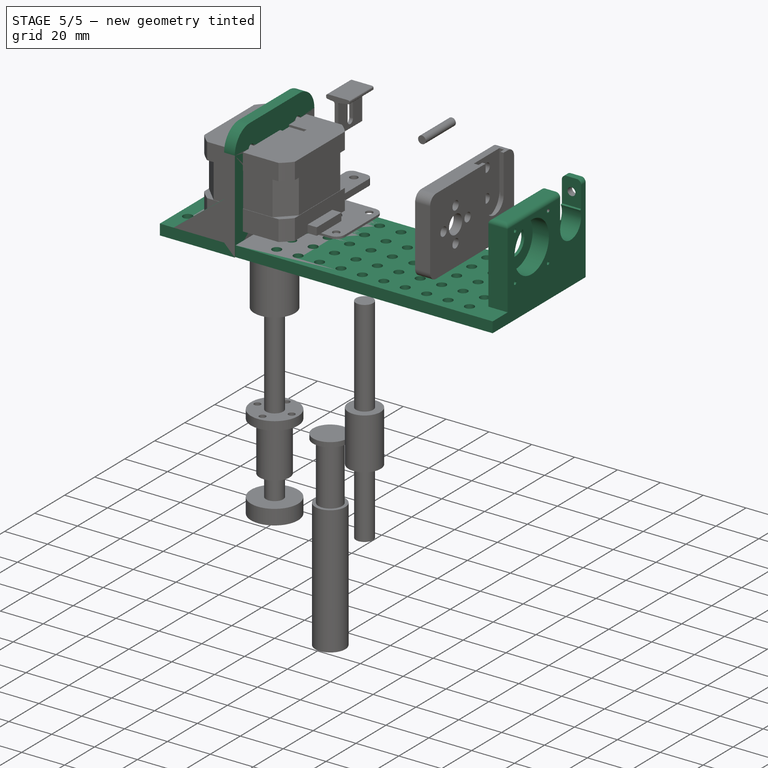
[diagram: stage 5 of 5 — iso view after this stage's code; geometry added in this stage tinted green]
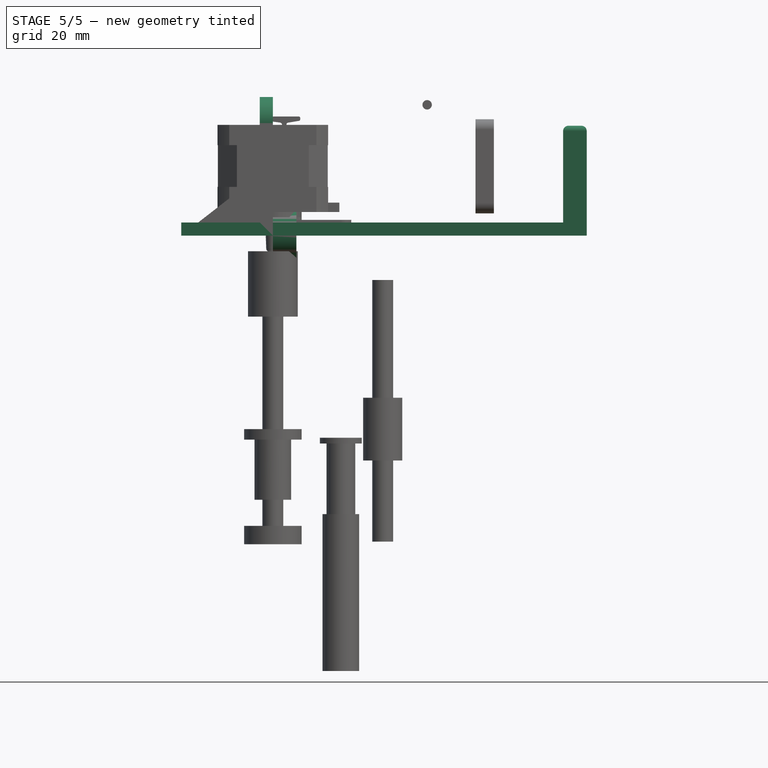
[diagram: stage 5 of 5 — front view after this stage's code; geometry added in this stage tinted green]
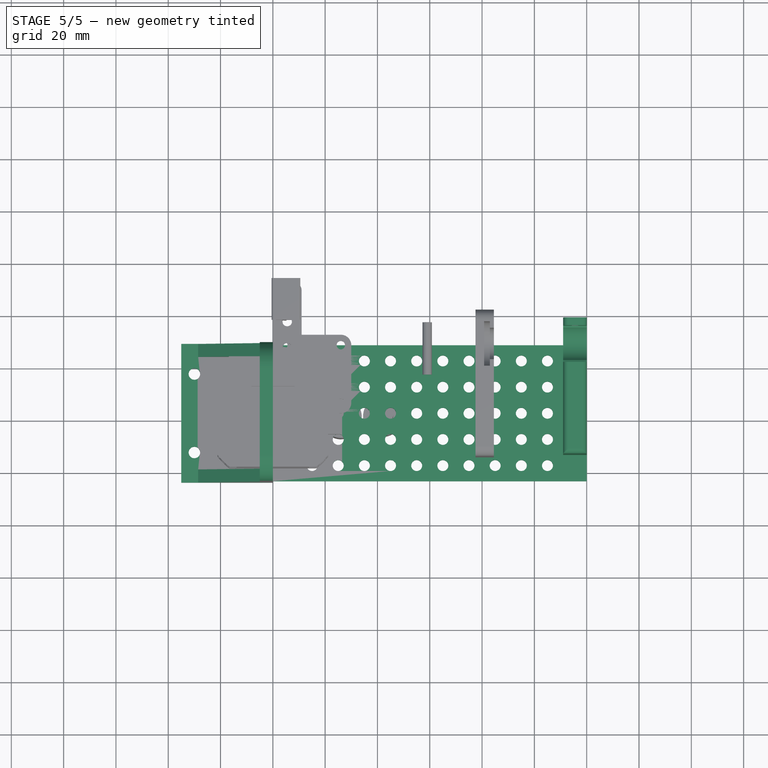
[diagram: stage 5 of 5 — top view after this stage's code; geometry added in this stage tinted green]
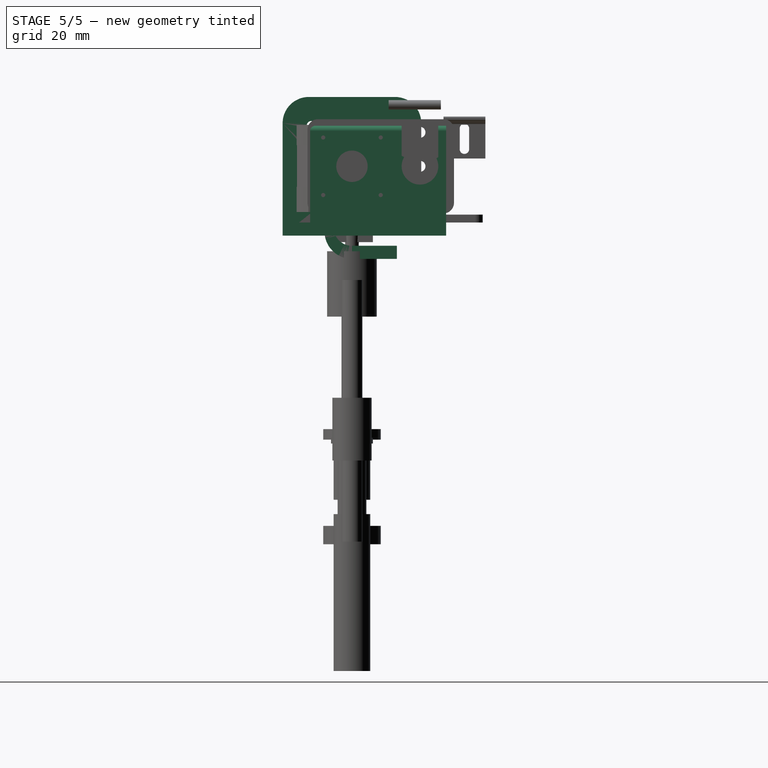
[diagram: stage 5 of 5 — right view after this stage's code; geometry added in this stage tinted green]
FEATURE [Spreadsheet::Sheet] Spreadsheet  label="p_block"
  cells = A1=external_x; B1(external_x)==120mm; A2=external_y; B2(external_y)==52mm; A3=external_z; B3(external_z)==42mm; A4=stepper_wall; B4(stepper_wall)==7mm; A5=bearing_wall; B5(bearing_wall)==9mm; A6=bottom_wall; B6(bottom_wall)==5mm; A7=bearing_r; B7(bearing_r)==11.5mm; A8=bearing_x; B8(bearing_x)==7.6mm; A9=lear_hole_r; B9(lear_hole_r)==6mm; A10=bearing_holder_hole_dist; B10(bearing_holder_hole_dist)==22mm; A11=insert_r; B11(insert_r)==2.1mm; A12=bolt_hole_r; B12(bolt_hole_r)==1.85mm; A13=middle_block_x; B13(middle_block_x)==7mm; A14=middle_block_y; B14(middle_block_y)==56mm; A15=middle_block_z; B15(middle_block_z)==36mm
FEATURE [Part::Cylinder] Cylinder  label="insert hole"
  Angle = 360
  AttacherType = Attacher::AttachEngine3D
  Height = 20
  Placement = pos=(0,0,-3) rot=(0,0,1;0rad)
  Radius = 2.2
  expr: Radius = <<p_stepper>>.insert_hole_r
FEATURE [Part::FeaturePython] Array  label="insert hole array"  # Draft array (typed FeaturePython)
  Angle = 360
  ArrayType = 0
  Axis = (0,0,1)
  Base = -> Cylinder
  Center = (0,0,0)
  Count = 4
  ExpandArray = false
  Fuse = false
  IntervalAxis = (0,0,0)
  IntervalX = (30,0,0)
  IntervalY = (0,20,0)
  IntervalZ = (0,0,100)
  NumberCircles = 3
  NumberPolar = 5
  NumberX = 2
  NumberY = 2
  NumberZ = 1
  Placement = pos=(-15,-20.5,10) rot=(1,0,0;1.5708rad)
  PlacementList = 4 placements: [(0,0,-3),(0,20,-3),(30,0,-3),(30,20,-3)]
  RadialDistance = 50
  ScaleList = (4) [(1,1,1),(1,1,1),(1,1,1),(1,1,1)]
  Symmetry = 1
  TangentialDistance = 25
  expr: .IntervalX.x = <<p_stepper>>.insert_hole_x_dist
  expr: .IntervalY.y = <<p_stepper>>.insert_hole_y_dist
  expr: .Placement.Base.y = -<<p_stepper>>.bolt_hole_dist / 2 - <<p_stepper>>.stepper_mount_wall
  expr: .Placement.Base.x = -.IntervalX.x / 2
  expr: .Placement.Base.z = .IntervalY.y / 2
FEATURE [Part::Cylinder] Cylinder098  label="stepper bolt hole"
  Angle = 360
  AttacherType = Attacher::AttachEngine3D
  Height = 5
  Radius = 1.8
  expr: Height = <<p_stepper>>.stepper_mount_wall
  expr: Radius = <<p_stepper>>.bolt_hole_r
FEATURE [Part::FeaturePython] Array001  label="stepper bolt hole array"  # Draft array (typed FeaturePython)
  Angle = 360
  ArrayType = 0
  Axis = (0,0,1)
  Base = -> Cylinder098
  Center = (0,0,0)
  Count = 4
  ExpandArray = false
  Fuse = false
  IntervalAxis = (0,0,0)
  IntervalX = (31,0,0)
  IntervalY = (0,31,0)
  IntervalZ = (0,0,100)
  NumberCircles = 3
  NumberPolar = 5
  NumberX = 2
  NumberY = 2
  NumberZ = 1
  Placement = pos=(-15.5,-15.5,0) rot=(0,0,1;0rad)
  PlacementList = 4 placements: [(0,0,0),(0,31,0),(31,0,0),(31,31,0)]
  RadialDistance = 50
  ScaleList = (4) [(1,1,1),(1,1,1),(1,1,1),(1,1,1)]
  Symmetry = 1
  TangentialDistance = 25
  expr: .Placement.Base.y = -.IntervalY.y / 2
  expr: .Placement.Base.x = -.IntervalX.x / 2
  expr: .IntervalY.y = <<p_stepper>>.bolt_hole_dist
  expr: .IntervalX.x = <<p_stepper>>.bolt_hole_dist
FEATURE [Part::Cylinder] Cylinder097  label="stepper central hole"
  Angle = 360
  AttacherType = Attacher::AttachEngine3D
  Height = 5
  Radius = 11.5
  expr: Height = <<p_stepper>>.stepper_mount_wall
  expr: Radius = <<p_stepper>>.central_hole_r
FEATURE [Part::MultiFuse] Fusion006  label="stepper mount holes"
  Shapes = -> [Cylinder097,Array001,Array]
FEATURE [Part::MultiFuse] Fusion007  label="stepper mount fusion"
  Shapes = -> [Array002,Box006,Fillet001]
FEATURE [Part::Cut] Cut004  label="stepper mount cut"
  Base = -> Fusion007
  Placement = pos=(-6e-15,-6e-15,21.5) rot=(0.57735,-0.57735,-0.57735;2.0944rad)
  Tool = -> Fusion006
  expr: .Placement.Base.z = <<p_stepper>>.stepper_size / 2
FEATURE [Spreadsheet::Sheet] Spreadsheet003  label="p_syringe"
  cells = A1=syringe_r; B1(syringe_r)==7mm; A2=syringe_body_x; B2(syringe_body_x)==60mm; A3=syringe_pusher_r; B3(syringe_pusher_r)==8mm; A4=syringe_pusher_x; B4(syringe_pusher_x)==2.2mm; A5=syringe_pusher_internal_r; B5(syringe_pusher_internal_r)==5.5mm; A6=syringe_pusher_body_x; B6(syringe_pusher_body_x)==60mm; A7=syringe_pusher_body_gap; B7(syringe_pusher_body_gap)==0.5mm; A8=insert_hole_r; B8(insert_hole_r)==2.1mm; A9=bolt_hole_r; B9(bolt_hole_r)==1.8mm; A10=tip_r1; B10(tip_r1)==2mm; A11=tip_r2; B11(tip_r2)==2.2mm; A12=tip_size; B12(tip_size)==6.6mm; A13=tip_wall; B13(tip_wall)==2mm; A14=tip_hole_r; B14(tip_hole_r)==0.7mm; A15=pipette_tip_r1; B15(pipette_tip_r1)==1.6mm; A16=pipette_tip_r2; B16(pipette_tip_r2)==2.1mm; A17=pipette_tip_size; B17(pipette_tip_size)==10mm; A18=pipette_hole_r; B18(pipette_hole_r)==1.2mm; A19=pipette_interbody_size; B19(pipette_interbody_size)==3mm; A20=pipette_tip_200_r1; B20(pipette_tip_200_r1)==2.5mm; A21=pipette_tip_200_r2; B21(pipette_tip_200_r2)==2.8mm; A22=pipette_tip_200_size; B22(pipette_tip_200_size)==8mm
FEATURE [Part::Box] Box007  label="bottom cube"
  AttacherType = Attacher::AttachEngine3D
  Height = 5
  Length = 120
  Placement = pos=(0,-26,-5) rot=(0,0,1;0rad)
  Width = 52
  expr: .Placement.Base.y = -Width / 2
  expr: Width = <<p_block>>.external_y
  expr: .Placement.Base.z = -Height
  expr: Height = <<p_block>>.bottom_wall
  expr: Length = <<p_block>>.external_x
FEATURE [Part::Cylinder] Cylinder099  label="bearing hole"
  Angle = 360
  AttacherType = Attacher::AttachEngine3D
  Height = 9
  Placement = pos=(112.4,0,21.5) rot=(0,1,0;1.5708rad)
  Radius = 11.5
  expr: .Placement.Base.z = <<stepper mount cut>>.Placement.Base.z
  expr: .Placement.Base.x = <<p_block>>.external_x - <<p_block>>.bearing_x
  expr: Height = <<p_block>>.bearing_wall
  expr: Radius = <<p_block>>.bearing_r
FEATURE [Part::Cylinder] Cylinder100  label="lead hole"
  Angle = 360
  AttacherType = Attacher::AttachEngine3D
  Height = 9
  Placement = pos=(111,0,21.5) rot=(0,1,0;1.5708rad)
  Radius = 6
  expr: Radius = <<p_block>>.lear_hole_r
  expr: Height = <<p_block>>.bearing_wall
  expr: .Placement.Base.x = <<p_block>>.external_x - <<p_block>>.bearing_wall
  expr: .Placement.Base.z = <<stepper mount cut>>.Placement.Base.z
FEATURE [Part::Cylinder] Cylinder020  label="bearing holder hole"
  Angle = 360
  AttacherType = Attacher::AttachEngine3D
  Height = 20
  Radius = 0.8
FEATURE [Part::FeaturePython] Array001006  label="lead holder hole array001"  # Draft array (typed FeaturePython)
  Angle = 360
  ArrayType = 0
  Axis = (0,0,1)
  Base = -> Cylinder020
  Center = (0,0,0)
  Fuse = false
  IntervalAxis = (0,0,0)
  IntervalX = (22,0,0)
  IntervalY = (0,22,0)
  IntervalZ = (0,0,1)
  NumberPolar = 1
  NumberX = 2
  NumberY = 2
  NumberZ = 1
  Placement = pos=(111,-11,32.5) rot=(0,1,0;1.5708rad)
  expr: .Placement.Base.x = <<p_block>>.external_x - <<p_block>>.bearing_wall
  expr: .Placement.Base.y = -.IntervalY.y / 2
  expr: .Placement.Base.z = <<bearing hole>>.Placement.Base.z + .IntervalX.x / 2
  expr: .IntervalX.x = <<p_block>>.bearing_holder_hole_dist
  expr: .IntervalY.y = <<p_block>>.bearing_holder_hole_dist
FEATURE [Part::MultiFuse] Fusion008  label="syringe hole fusion"
  Placement = pos=(111,26,21.5) rot=(0.57735,0.57735,0.57735;2.0944rad)
  Shapes = -> [Box008,Cylinder101]
  expr: .Placement.Base.x = <<p_block>>.external_x - <<p_block>>.bearing_wall
  expr: .Placement.Base.z = <<bearing hole>>.Placement.Base.z
FEATURE [Part::Cylinder] Cylinder102  label="insert_hole"
  Angle = 360
  AttacherType = Attacher::AttachEngine3D
  Height = 10
  Radius = 2.1
  expr: Radius = <<p_block>>.insert_r
FEATURE [Part::FeaturePython] Array001007  label="insert_hole array"  # Draft array (typed FeaturePython)
  Angle = 360
  ArrayType = 0
  Axis = (0,0,1)
  Base = -> Cylinder102
  Center = (0,0,0)
  Count = 50
  ExpandArray = false
  Fuse = false
  IntervalAxis = (0,0,0)
  IntervalX = (10,0,0)
  IntervalY = (0,10,0)
  IntervalZ = (0,0,100)
  NumberCircles = 3
  NumberPolar = 5
  NumberX = 10
  NumberY = 5
  NumberZ = 1
  Placement = pos=(15,-20,-5) rot=(0,0,1;0rad)
  PlacementList = 50 placements: [(0,0,0),(0,10,0),(0,20,0),(0,30,0),(0,40,0),(10,0,0),(10,10,0),(10,20,0),(10,30,0),(10,40,0),(20,0,0),(20,10,0),(20,20,0),(20,30,0),(20,40,0),(30,0,0),(30,10,0),(30,20,0),(30,30,0),(30,40,0),(40,0,0),(40,10,0),(40,20,0),(40,30,0),(40,40,0),(50,0,0),(50,10,0),(50,20,0),(50,30,0),(50,40,0),(60,0,0),(60,10,0),(60,20,0),(60,30,0),(60,40,0),(70,0,0),(70,10,0),(70,20,0),(70,30,0),(70,40,0),(80,0,0),+9 more]
  RadialDistance = 50
  ScaleList = (50) [(1,1,1),(1,1,1),(1,1,1),(1,1,1),(1,1,1),(1,1,1),(1,1,1),(1,1,1),(1,1,1),(1,1,1),(1,1,1),(1,1,1),(1,1,1),(1,1,1),(1,1,1),(1,1,1),(1,1,1),(1,1,1),+32 more]
  Symmetry = 1
  TangentialDistance = 25
  expr: .Placement.Base.x = (<<p_block>>.external_x - .IntervalX.x * (NumberX - 1)) / 2
  expr: .Placement.Base.y = -<<p_block>>.external_y / 2 + (<<p_block>>.external_y - .IntervalY.y * (NumberY - 1)) / 2
  expr: .Placement.Base.z = -<<p_block>>.bottom_wall
FEATURE [Part::Cut] Cut005  label="bottom cut"
  Base = -> Box007
  Tool = -> Array001007
FEATURE [Sketcher::SketchObject] Sketch
  FullyConstrained = false
  MapMode = 5
  Placement = pos=(0,0,0) rot=(0.57735,0.57735,0.57735;2.0944rad)
  Support = -> [YZ_Plane010]
  expr: Constraints[5] = <<p_syringe>>.syringe_r
  sketch-geometry (8):
    g0: LineSegment StartX=-2e-16 StartY=5.10344 StartZ=0 EndX=17.1766 EndY=5.10344 EndZ=0
    g1: LineSegment StartX=-4e-16 StartY=-8.89656 StartZ=0 EndX=17.1766 EndY=-8.89656 EndZ=0
    g2: ArcOfCircle CenterX=9e-16 CenterY=-1.89656 CenterZ=0 NormalX=0 NormalY=0 NormalZ=1 AngleXU=0 Radius=7 StartAngle=1.5708 EndAngle=4.71239
    g3: LineSegment StartX=17.1766 StartY=5.10344 StartZ=0 EndX=17.1766 EndY=7.10344 EndZ=0
    g4: LineSegment StartX=17.1766 StartY=7.10344 StartZ=0 EndX=0 EndY=7.10344 EndZ=0
    g5: LineSegment StartX=17.1766 StartY=-8.89656 StartZ=0 EndX=17.1766 EndY=-13.8966 EndZ=0
    g6: LineSegment StartX=17.1766 StartY=-13.8966 StartZ=0 EndX=-3.6e-15 EndY=-13.8966 EndZ=0
    g7: ArcOfCircle CenterX=-1.3e-15 CenterY=-3.39656 CenterZ=0 NormalX=0 NormalY=0 NormalZ=1 AngleXU=0 Radius=10.5 StartAngle=1.5708 EndAngle=4.71239
  constraints (20):
    c: PointOnObject(g0,g-2)
    c: Horizontal(g0)
    c: PointOnObject(g1,g-2)
    c: Tangent(g2,g1) = -1.5708
    c: Tangent(g2,g0) = 1.5708
    c: Radius(g2) = 7
    c: Coincident(g3,g0)
    c: Horizontal(g4)
    c: Coincident(g5,g1)
    c: Coincident(g6,g5)
    c: PointOnObject(g6,g-2)
    c: Tangent(g7,g4) = -1.5708
    c: Tangent(g7,g6) = 1.5708
    c: Equal(g6,g1)
    c: Equal(g1,g0)
    c: Equal(g0,g4)
    c: Horizontal(g6)
    c: Coincident(g3,g4)
    c: DistanceY(g0,g4) = 2
    c: DistanceY(g6,g1) = 5
FEATURE [PartDesign::Pad] Pad
  Direction = (1,1,1)
  Length = 9
  Length2 = 100
  Placement = pos=(0,0,0) rot=(0.57735,0.57735,0.57735;2.0944rad)
  Profile = -> Sketch
  Type = 0
  expr: Length = <<p_block>>.bearing_wall
FEATURE [Part::Cut] Cut006  label="syringe hole cut"
  Base = -> Cylinder104
  Placement = pos=(111,26,21.5) rot=(0.654654,-0.377964,0.654654;3.86433rad)
  Tool = -> Cylinder103
  expr: .Placement.Base.x = <<p_block>>.external_x - <<p_block>>.bearing_wall
  expr: .Placement.Base.z = <<bearing hole>>.Placement.Base.z
  expr: .Placement.Base.y = <<syringe hole fusion>>.Placement.Base.y
FEATURE [Part::MultiFuse] Fusion  label="bearing hole fusion"
  Shapes = -> [Cylinder099,Cylinder100,Array001006,Fusion008,Fusion009]
FEATURE [Part::Compound] Compound  label="bearing compound"
  Links = -> [Fillet]
  Placement = pos=(111,0,0) rot=(0,0,1;0rad)
  expr: .Placement.Base.x = <<p_block>>.external_x - <<p_block>>.bearing_wall
FEATURE [Part::Cut] Cut  label="bearing wall cut"
  Base = -> Compound
  Tool = -> Fusion
FEATURE [Part::Compound] Compound001  label="block compound"
  Links = -> [Cut004,Cut,Cut005,Cut006]
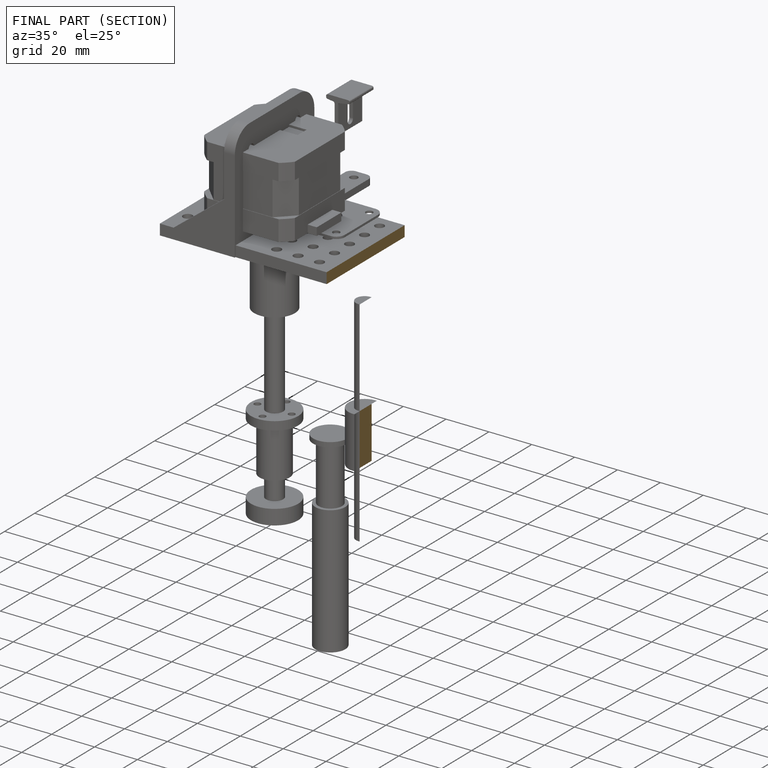
[diagram: finished part — half-section view (interior)]
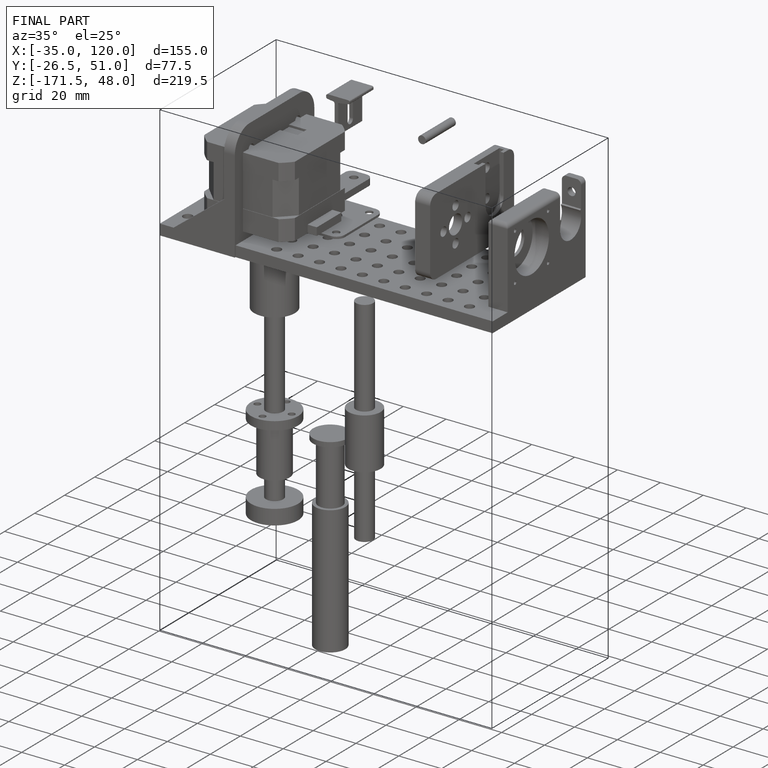
[diagram: finished part — iso view with bounding-box wireframe]
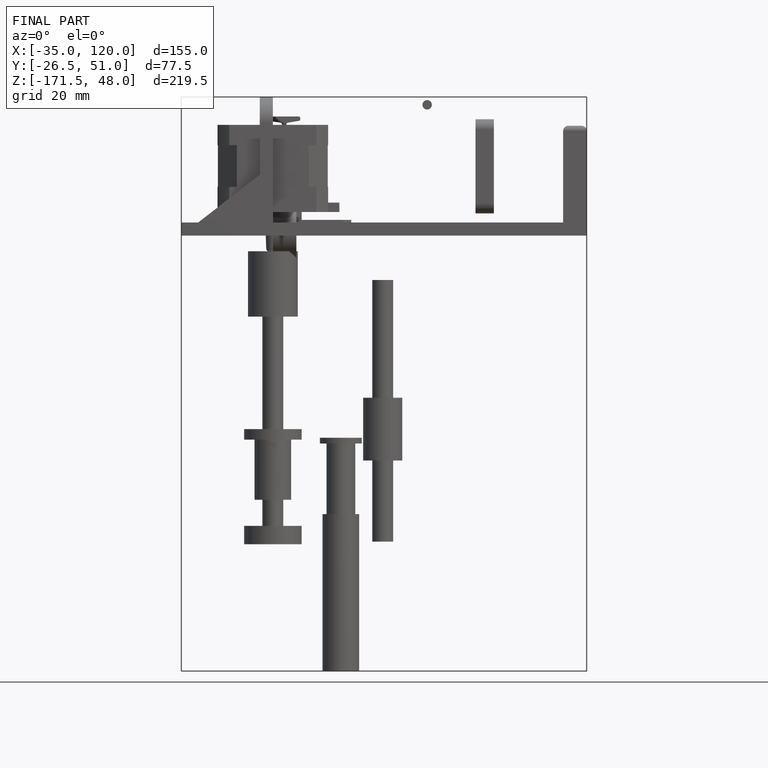
[diagram: finished part — front view with bounding-box wireframe]
